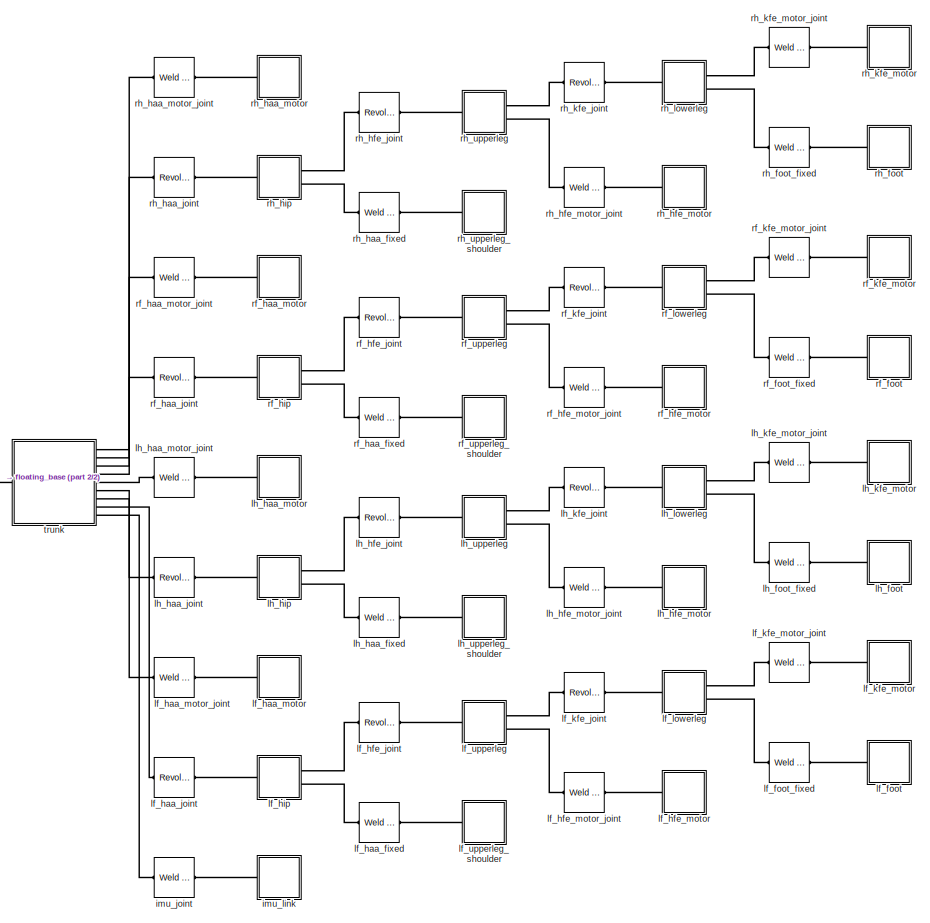
[diagram: root canvas - part 1/2, right side, full height]
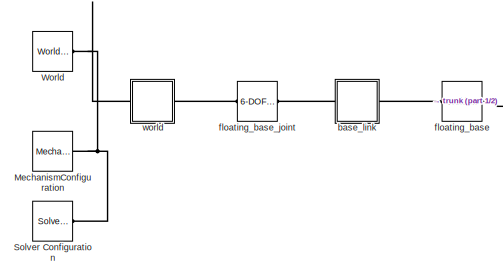
[diagram: root canvas - part 2/2, middle left region]
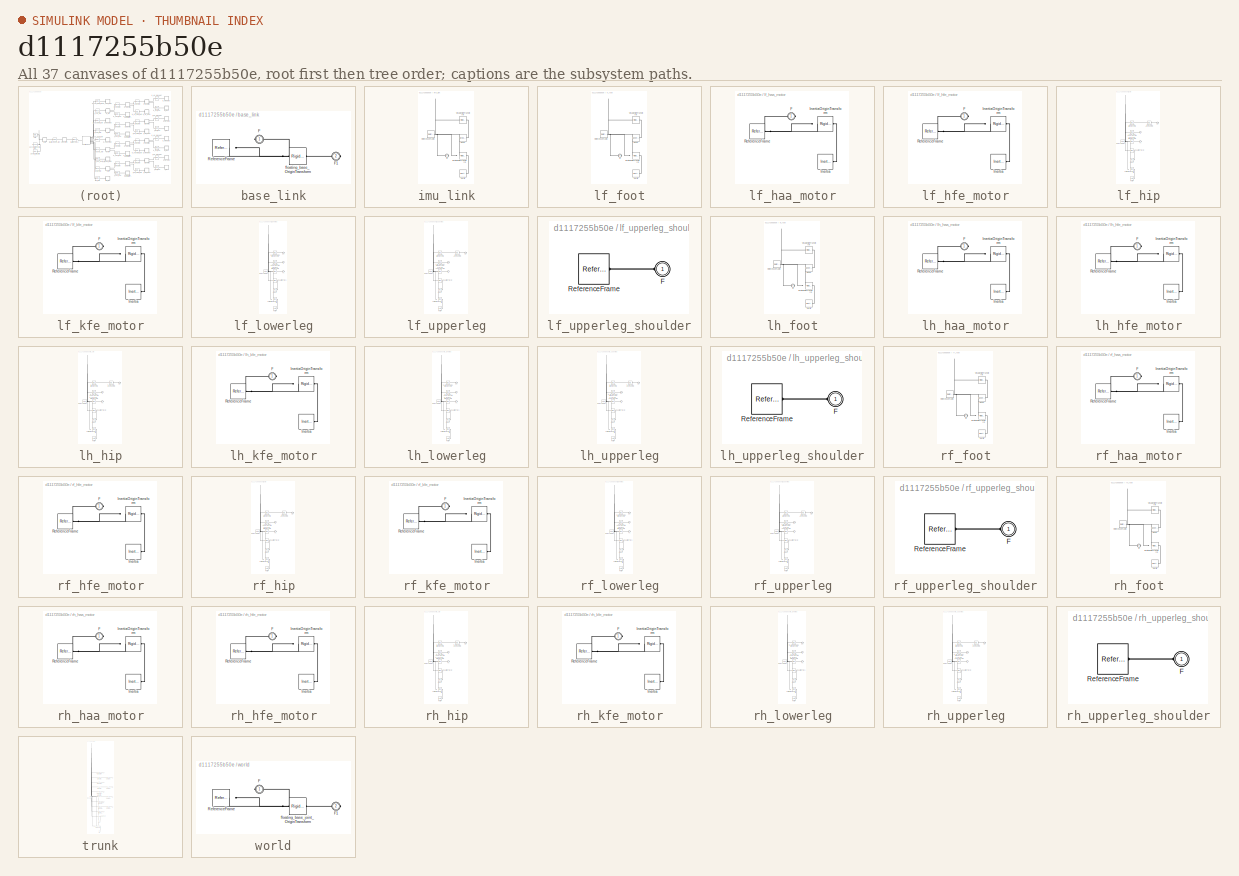
[diagram: thumbnail index - all 37 canvases of the model, root first then tree order]
MODEL slx_d1117255b50e
KIND model
CONFIG AbsTol = auto
CONFIG EnableMultiTasking = off
CONFIG FixedStep = auto
CONFIG MaxStep = auto
CONFIG MinStep = auto
CONFIG RelTol = 1e-3
CONFIG SampleTimeConstraint = Unconstrained
CONFIG SolverName = VariableStepAuto
CONFIG StartTime = 0.0
CONFIG StopTime = 10.0
BLOCK [Reference] MechanismConfiguration  REF=sm_lib/Utilities/Mechanism
Configuration
  Ports = [0, 0, 0, 0, 0, 0, 1]
  SourceBlock = sm_lib/Utilities/Mechanism\nConfiguration
  SourceProductBaseCode = MS
  SourceType = Mechanism\nConfiguration
BLOCK [Reference] Solver Configuration  REF=nesl_utility/Solver
Configuration
  Ports = [0, 0, 0, 0, 0, 0, 1]
  SourceBlock = nesl_utility/Solver\nConfiguration
  SourceProductBaseCode = PW,SS
  SourceType = Solver\nConfiguration
BLOCK [Reference] World  REF=sm_lib/Frames and
Transforms/World Frame
  Ports = [0, 0, 0, 0, 0, 0, 1]
  SourceBlock = sm_lib/Frames and\nTransforms/World Frame
  SourceProductBaseCode = MS
  SourceType = World Frame
BLOCK [SubSystem] base_link
  Ports = [0, 0, 0, 0, 0, 1, 1]
  RequestExecContextInheritance = off
BLOCK [PMIOPort] base_link/F
  Side = Left
BLOCK [PMIOPort] base_link/F1
  Port = 2
  Side = Right
BLOCK [Reference] base_link/ReferenceFrame  REF=sm_lib/Frames and
Transforms/Reference
Frame
  Ports = [0, 0, 0, 0, 0, 0, 1]
  SourceBlock = sm_lib/Frames and\nTransforms/Reference\nFrame
  SourceProductBaseCode = MS
  SourceType = Reference\nFrame
BLOCK [Reference] base_link/floating_base_OriginTransform  REF=sm_lib/Frames and
Transforms/Rigid
Transform
  Ports = [0, 0, 0, 0, 0, 1, 1]
  SourceBlock = sm_lib/Frames and\nTransforms/Rigid\nTransform
  SourceProductBaseCode = MS
  SourceType = Rigid\nTransform
BLOCK [Reference] floating_base  REF=sm_lib/Joints/Weld Joint
  Ports = [0, 0, 0, 0, 0, 1, 1]
  SourceBlock = sm_lib/Joints/Weld Joint
  SourceProductBaseCode = MS
  SourceType = Weld Joint
BLOCK [Reference] floating_base_joint  REF=sm_lib/Joints/6-DOF Joint
  Ports = [0, 0, 0, 0, 0, 1, 1]
  SourceBlock = sm_lib/Joints/6-DOF Joint
  SourceProductBaseCode = MS
  SourceType = 6-DOF Joint
BLOCK [Reference] imu_joint  REF=sm_lib/Joints/Weld Joint
  Ports = [0, 0, 0, 0, 0, 1, 1]
  SourceBlock = sm_lib/Joints/Weld Joint
  SourceProductBaseCode = MS
  SourceType = Weld Joint
BLOCK [SubSystem] imu_link
  Ports = [0, 0, 0, 0, 0, 1]
  RequestExecContextInheritance = off
BLOCK [PMIOPort] imu_link/F
  Side = Left
BLOCK [Reference] imu_link/Inertia  REF=sm_lib/Body Elements/Inertia
  Ports = [0, 0, 0, 0, 0, 0, 1]
  SourceBlock = sm_lib/Body Elements/Inertia
  SourceProductBaseCode = MS
  SourceType = Inertia
BLOCK [Reference] imu_link/InertiaOriginTransform  REF=sm_lib/Frames and
Transforms/Rigid
Transform
  Ports = [0, 0, 0, 0, 0, 1, 1]
  SourceBlock = sm_lib/Frames and\nTransforms/Rigid\nTransform
  SourceProductBaseCode = MS
  SourceType = Rigid\nTransform
BLOCK [Reference] imu_link/ReferenceFrame  REF=sm_lib/Frames and
Transforms/Reference
Frame
  Ports = [0, 0, 0, 0, 0, 0, 1]
  SourceBlock = sm_lib/Frames and\nTransforms/Reference\nFrame
  SourceProductBaseCode = MS
  SourceType = Reference\nFrame
BLOCK [Reference] imu_link/Visual  REF=sm_lib/Body Elements/Brick Solid
  Ports = [0, 0, 0, 0, 0, 0, 1]
  SourceBlock = sm_lib/Body Elements/Brick Solid
  SourceProductBaseCode = MS
  SourceType = Brick Solid
BLOCK [Reference] imu_link/VisualOriginTransform  REF=sm_lib/Frames and
Transforms/Rigid
Transform
  Ports = [0, 0, 0, 0, 0, 1, 1]
  SourceBlock = sm_lib/Frames and\nTransforms/Rigid\nTransform
  SourceProductBaseCode = MS
  SourceType = Rigid\nTransform
BLOCK [SubSystem] lf_foot
  Ports = [0, 0, 0, 0, 0, 1]
  RequestExecContextInheritance = off
BLOCK [PMIOPort] lf_foot/F
  Side = Left
BLOCK [Reference] lf_foot/Inertia  REF=sm_lib/Body Elements/Inertia
  Ports = [0, 0, 0, 0, 0, 0, 1]
  SourceBlock = sm_lib/Body Elements/Inertia
  SourceProductBaseCode = MS
  SourceType = Inertia
BLOCK [Reference] lf_foot/InertiaOriginTransform  REF=sm_lib/Frames and
Transforms/Rigid
Transform
  Ports = [0, 0, 0, 0, 0, 1, 1]
  SourceBlock = sm_lib/Frames and\nTransforms/Rigid\nTransform
  SourceProductBaseCode = MS
  SourceType = Rigid\nTransform
BLOCK [Reference] lf_foot/ReferenceFrame  REF=sm_lib/Frames and
Transforms/Reference
Frame
  Ports = [0, 0, 0, 0, 0, 0, 1]
  SourceBlock = sm_lib/Frames and\nTransforms/Reference\nFrame
  SourceProductBaseCode = MS
  SourceType = Reference\nFrame
BLOCK [Reference] lf_foot/Visual  REF=sm_lib/Body Elements/Spherical Solid
  Ports = [0, 0, 0, 0, 0, 0, 1]
  SourceBlock = sm_lib/Body Elements/Spherical Solid
  SourceProductBaseCode = MS
  SourceType = Spherical Solid
BLOCK [Reference] lf_foot/VisualOriginTransform  REF=sm_lib/Frames and
Transforms/Rigid
Transform
  Ports = [0, 0, 0, 0, 0, 1, 1]
  SourceBlock = sm_lib/Frames and\nTransforms/Rigid\nTransform
  SourceProductBaseCode = MS
  SourceType = Rigid\nTransform
BLOCK [Reference] lf_foot_fixed  REF=sm_lib/Joints/Weld Joint
  Ports = [0, 0, 0, 0, 0, 1, 1]
  SourceBlock = sm_lib/Joints/Weld Joint
  SourceProductBaseCode = MS
  SourceType = Weld Joint
BLOCK [Reference] lf_haa_fixed  REF=sm_lib/Joints/Weld Joint
  Ports = [0, 0, 0, 0, 0, 1, 1]
  SourceBlock = sm_lib/Joints/Weld Joint
  SourceProductBaseCode = MS
  SourceType = Weld Joint
BLOCK [Reference] lf_haa_joint  REF=sm_lib/Joints/Revolute Joint
  Ports = [0, 0, 0, 0, 0, 1, 1]
  SourceBlock = sm_lib/Joints/Revolute Joint
  SourceProductBaseCode = MS
  SourceType = Revolute Joint
BLOCK [SubSystem] lf_haa_motor
  Ports = [0, 0, 0, 0, 0, 1]
  RequestExecContextInheritance = off
BLOCK [PMIOPort] lf_haa_motor/F
  Side = Left
BLOCK [Reference] lf_haa_motor/Inertia  REF=sm_lib/Body Elements/Inertia
  Ports = [0, 0, 0, 0, 0, 0, 1]
  SourceBlock = sm_lib/Body Elements/Inertia
  SourceProductBaseCode = MS
  SourceType = Inertia
BLOCK [Reference] lf_haa_motor/InertiaOriginTransform  REF=sm_lib/Frames and
Transforms/Rigid
Transform
  Ports = [0, 0, 0, 0, 0, 1, 1]
  SourceBlock = sm_lib/Frames and\nTransforms/Rigid\nTransform
  SourceProductBaseCode = MS
  SourceType = Rigid\nTransform
BLOCK [Reference] lf_haa_motor/ReferenceFrame  REF=sm_lib/Frames and
Transforms/Reference
Frame
  Ports = [0, 0, 0, 0, 0, 0, 1]
  SourceBlock = sm_lib/Frames and\nTransforms/Reference\nFrame
  SourceProductBaseCode = MS
  SourceType = Reference\nFrame
BLOCK [Reference] lf_haa_motor_joint  REF=sm_lib/Joints/Weld Joint
  Ports = [0, 0, 0, 0, 0, 1, 1]
  SourceBlock = sm_lib/Joints/Weld Joint
  SourceProductBaseCode = MS
  SourceType = Weld Joint
BLOCK [Reference] lf_hfe_joint  REF=sm_lib/Joints/Revolute Joint
  Ports = [0, 0, 0, 0, 0, 1, 1]
  SourceBlock = sm_lib/Joints/Revolute Joint
  SourceProductBaseCode = MS
  SourceType = Revolute Joint
BLOCK [SubSystem] lf_hfe_motor
  Ports = [0, 0, 0, 0, 0, 1]
  RequestExecContextInheritance = off
BLOCK [PMIOPort] lf_hfe_motor/F
  Side = Left
BLOCK [Reference] lf_hfe_motor/Inertia  REF=sm_lib/Body Elements/Inertia
  Ports = [0, 0, 0, 0, 0, 0, 1]
  SourceBlock = sm_lib/Body Elements/Inertia
  SourceProductBaseCode = MS
  SourceType = Inertia
BLOCK [Reference] lf_hfe_motor/InertiaOriginTransform  REF=sm_lib/Frames and
Transforms/Rigid
Transform
  Ports = [0, 0, 0, 0, 0, 1, 1]
  SourceBlock = sm_lib/Frames and\nTransforms/Rigid\nTransform
  SourceProductBaseCode = MS
  SourceType = Rigid\nTransform
BLOCK [Reference] lf_hfe_motor/ReferenceFrame  REF=sm_lib/Frames and
Transforms/Reference
Frame
  Ports = [0, 0, 0, 0, 0, 0, 1]
  SourceBlock = sm_lib/Frames and\nTransforms/Reference\nFrame
  SourceProductBaseCode = MS
  SourceType = Reference\nFrame
BLOCK [Reference] lf_hfe_motor_joint  REF=sm_lib/Joints/Weld Joint
  Ports = [0, 0, 0, 0, 0, 1, 1]
  SourceBlock = sm_lib/Joints/Weld Joint
  SourceProductBaseCode = MS
  SourceType = Weld Joint
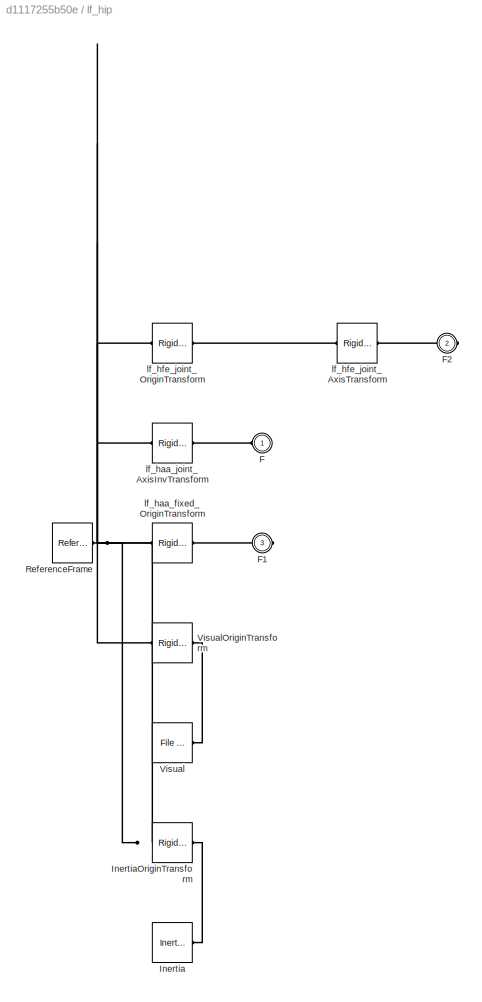
BLOCK [SubSystem] lf_hip
  Ports = [0, 0, 0, 0, 0, 1, 2]
  RequestExecContextInheritance = off
BLOCK [PMIOPort] lf_hip/F
  Side = Left
BLOCK [PMIOPort] lf_hip/F1
  Port = 3
  Side = Right
BLOCK [PMIOPort] lf_hip/F2
  Port = 2
  Side = Right
BLOCK [Reference] lf_hip/Inertia  REF=sm_lib/Body Elements/Inertia
  Ports = [0, 0, 0, 0, 0, 0, 1]
  SourceBlock = sm_lib/Body Elements/Inertia
  SourceProductBaseCode = MS
  SourceType = Inertia
BLOCK [Reference] lf_hip/InertiaOriginTransform  REF=sm_lib/Frames and
Transforms/Rigid
Transform
  Ports = [0, 0, 0, 0, 0, 1, 1]
  SourceBlock = sm_lib/Frames and\nTransforms/Rigid\nTransform
  SourceProductBaseCode = MS
  SourceType = Rigid\nTransform
BLOCK [Reference] lf_hip/ReferenceFrame  REF=sm_lib/Frames and
Transforms/Reference
Frame
  Ports = [0, 0, 0, 0, 0, 0, 1]
  SourceBlock = sm_lib/Frames and\nTransforms/Reference\nFrame
  SourceProductBaseCode = MS
  SourceType = Reference\nFrame
BLOCK [Reference] lf_hip/Visual  REF=sm_lib/Body Elements/File Solid
  Ports = [0, 0, 0, 0, 0, 0, 1]
  SourceBlock = sm_lib/Body Elements/File Solid
  SourceProductBaseCode = MS
  SourceType = File Solid
BLOCK [Reference] lf_hip/VisualOriginTransform  REF=sm_lib/Frames and
Transforms/Rigid
Transform
  Ports = [0, 0, 0, 0, 0, 1, 1]
  SourceBlock = sm_lib/Frames and\nTransforms/Rigid\nTransform
  SourceProductBaseCode = MS
  SourceType = Rigid\nTransform
BLOCK [Reference] lf_hip/lf_haa_fixed_OriginTransform  REF=sm_lib/Frames and
Transforms/Rigid
Transform
  Ports = [0, 0, 0, 0, 0, 1, 1]
  SourceBlock = sm_lib/Frames and\nTransforms/Rigid\nTransform
  SourceProductBaseCode = MS
  SourceType = Rigid\nTransform
BLOCK [Reference] lf_hip/lf_haa_joint_AxisInvTransform  REF=sm_lib/Frames and
Transforms/Rigid
Transform
  Ports = [0, 0, 0, 0, 0, 1, 1]
  SourceBlock = sm_lib/Frames and\nTransforms/Rigid\nTransform
  SourceProductBaseCode = MS
  SourceType = Rigid\nTransform
BLOCK [Reference] lf_hip/lf_hfe_joint_AxisTransform  REF=sm_lib/Frames and
Transforms/Rigid
Transform
  Ports = [0, 0, 0, 0, 0, 1, 1]
  SourceBlock = sm_lib/Frames and\nTransforms/Rigid\nTransform
  SourceProductBaseCode = MS
  SourceType = Rigid\nTransform
BLOCK [Reference] lf_hip/lf_hfe_joint_OriginTransform  REF=sm_lib/Frames and
Transforms/Rigid
Transform
  Ports = [0, 0, 0, 0, 0, 1, 1]
  SourceBlock = sm_lib/Frames and\nTransforms/Rigid\nTransform
  SourceProductBaseCode = MS
  SourceType = Rigid\nTransform
BLOCK [Reference] lf_kfe_joint  REF=sm_lib/Joints/Revolute Joint
  Ports = [0, 0, 0, 0, 0, 1, 1]
  SourceBlock = sm_lib/Joints/Revolute Joint
  SourceProductBaseCode = MS
  SourceType = Revolute Joint
BLOCK [SubSystem] lf_kfe_motor
  Ports = [0, 0, 0, 0, 0, 1]
  RequestExecContextInheritance = off
BLOCK [PMIOPort] lf_kfe_motor/F
  Side = Left
BLOCK [Reference] lf_kfe_motor/Inertia  REF=sm_lib/Body Elements/Inertia
  Ports = [0, 0, 0, 0, 0, 0, 1]
  SourceBlock = sm_lib/Body Elements/Inertia
  SourceProductBaseCode = MS
  SourceType = Inertia
BLOCK [Reference] lf_kfe_motor/InertiaOriginTransform  REF=sm_lib/Frames and
Transforms/Rigid
Transform
  Ports = [0, 0, 0, 0, 0, 1, 1]
  SourceBlock = sm_lib/Frames and\nTransforms/Rigid\nTransform
  SourceProductBaseCode = MS
  SourceType = Rigid\nTransform
BLOCK [Reference] lf_kfe_motor/ReferenceFrame  REF=sm_lib/Frames and
Transforms/Reference
Frame
  Ports = [0, 0, 0, 0, 0, 0, 1]
  SourceBlock = sm_lib/Frames and\nTransforms/Reference\nFrame
  SourceProductBaseCode = MS
  SourceType = Reference\nFrame
BLOCK [Reference] lf_kfe_motor_joint  REF=sm_lib/Joints/Weld Joint
  Ports = [0, 0, 0, 0, 0, 1, 1]
  SourceBlock = sm_lib/Joints/Weld Joint
  SourceProductBaseCode = MS
  SourceType = Weld Joint
BLOCK [SubSystem] lf_lowerleg
  Ports = [0, 0, 0, 0, 0, 1, 2]
  RequestExecContextInheritance = off
BLOCK [PMIOPort] lf_lowerleg/F
  Side = Left
BLOCK [PMIOPort] lf_lowerleg/F1
  Port = 3
  Side = Right
BLOCK [PMIOPort] lf_lowerleg/F2
  Port = 2
  Side = Right
BLOCK [Reference] lf_lowerleg/Inertia  REF=sm_lib/Body Elements/Inertia
  Ports = [0, 0, 0, 0, 0, 0, 1]
  SourceBlock = sm_lib/Body Elements/Inertia
  SourceProductBaseCode = MS
  SourceType = Inertia
BLOCK [Reference] lf_lowerleg/InertiaOriginTransform  REF=sm_lib/Frames and
Transforms/Rigid
Transform
  Ports = [0, 0, 0, 0, 0, 1, 1]
  SourceBlock = sm_lib/Frames and\nTransforms/Rigid\nTransform
  SourceProductBaseCode = MS
  SourceType = Rigid\nTransform
BLOCK [Reference] lf_lowerleg/ReferenceFrame  REF=sm_lib/Frames and
Transforms/Reference
Frame
  Ports = [0, 0, 0, 0, 0, 0, 1]
  SourceBlock = sm_lib/Frames and\nTransforms/Reference\nFrame
  SourceProductBaseCode = MS
  SourceType = Reference\nFrame
BLOCK [Reference] lf_lowerleg/Visual  REF=sm_lib/Body Elements/File Solid
  Ports = [0, 0, 0, 0, 0, 0, 1]
  SourceBlock = sm_lib/Body Elements/File Solid
  SourceProductBaseCode = MS
  SourceType = File Solid
BLOCK [Reference] lf_lowerleg/VisualOriginTransform  REF=sm_lib/Frames and
Transforms/Rigid
Transform
  Ports = [0, 0, 0, 0, 0, 1, 1]
  SourceBlock = sm_lib/Frames and\nTransforms/Rigid\nTransform
  SourceProductBaseCode = MS
  SourceType = Rigid\nTransform
BLOCK [Reference] lf_lowerleg/lf_foot_fixed_OriginTransform  REF=sm_lib/Frames and
Transforms/Rigid
Transform
  Ports = [0, 0, 0, 0, 0, 1, 1]
  SourceBlock = sm_lib/Frames and\nTransforms/Rigid\nTransform
  SourceProductBaseCode = MS
  SourceType = Rigid\nTransform
BLOCK [Reference] lf_lowerleg/lf_kfe_joint_AxisInvTransform  REF=sm_lib/Frames and
Transforms/Rigid
Transform
  Ports = [0, 0, 0, 0, 0, 1, 1]
  SourceBlock = sm_lib/Frames and\nTransforms/Rigid\nTransform
  SourceProductBaseCode = MS
  SourceType = Rigid\nTransform
BLOCK [Reference] lf_lowerleg/lf_kfe_motor_joint_OriginTransform  REF=sm_lib/Frames and
Transforms/Rigid
Transform
  Ports = [0, 0, 0, 0, 0, 1, 1]
  SourceBlock = sm_lib/Frames and\nTransforms/Rigid\nTransform
  SourceProductBaseCode = MS
  SourceType = Rigid\nTransform
BLOCK [SubSystem] lf_upperleg
  Ports = [0, 0, 0, 0, 0, 1, 2]
  RequestExecContextInheritance = off
BLOCK [PMIOPort] lf_upperleg/F
  Side = Left
BLOCK [PMIOPort] lf_upperleg/F1
  Port = 3
  Side = Right
BLOCK [PMIOPort] lf_upperleg/F2
  Port = 2
  Side = Right
BLOCK [Reference] lf_upperleg/Inertia  REF=sm_lib/Body Elements/Inertia
  Ports = [0, 0, 0, 0, 0, 0, 1]
  SourceBlock = sm_lib/Body Elements/Inertia
  SourceProductBaseCode = MS
  SourceType = Inertia
BLOCK [Reference] lf_upperleg/InertiaOriginTransform  REF=sm_lib/Frames and
Transforms/Rigid
Transform
  Ports = [0, 0, 0, 0, 0, 1, 1]
  SourceBlock = sm_lib/Frames and\nTransforms/Rigid\nTransform
  SourceProductBaseCode = MS
  SourceType = Rigid\nTransform
BLOCK [Reference] lf_upperleg/ReferenceFrame  REF=sm_lib/Frames and
Transforms/Reference
Frame
  Ports = [0, 0, 0, 0, 0, 0, 1]
  SourceBlock = sm_lib/Frames and\nTransforms/Reference\nFrame
  SourceProductBaseCode = MS
  SourceType = Reference\nFrame
BLOCK [Reference] lf_upperleg/Visual  REF=sm_lib/Body Elements/File Solid
  Ports = [0, 0, 0, 0, 0, 0, 1]
  SourceBlock = sm_lib/Body Elements/File Solid
  SourceProductBaseCode = MS
  SourceType = File Solid
BLOCK [Reference] lf_upperleg/VisualOriginTransform  REF=sm_lib/Frames and
Transforms/Rigid
Transform
  Ports = [0, 0, 0, 0, 0, 1, 1]
  SourceBlock = sm_lib/Frames and\nTransforms/Rigid\nTransform
  SourceProductBaseCode = MS
  SourceType = Rigid\nTransform
BLOCK [Reference] lf_upperleg/lf_hfe_joint_AxisInvTransform  REF=sm_lib/Frames and
Transforms/Rigid
Transform
  Ports = [0, 0, 0, 0, 0, 1, 1]
  SourceBlock = sm_lib/Frames and\nTransforms/Rigid\nTransform
  SourceProductBaseCode = MS
  SourceType = Rigid\nTransform
BLOCK [Reference] lf_upperleg/lf_hfe_motor_joint_OriginTransform  REF=sm_lib/Frames and
Transforms/Rigid
Transform
  Ports = [0, 0, 0, 0, 0, 1, 1]
  SourceBlock = sm_lib/Frames and\nTransforms/Rigid\nTransform
  SourceProductBaseCode = MS
  SourceType = Rigid\nTransform
BLOCK [Reference] lf_upperleg/lf_kfe_joint_AxisTransform  REF=sm_lib/Frames and
Transforms/Rigid
Transform
  Ports = [0, 0, 0, 0, 0, 1, 1]
  SourceBlock = sm_lib/Frames and\nTransforms/Rigid\nTransform
  SourceProductBaseCode = MS
  SourceType = Rigid\nTransform
BLOCK [Reference] lf_upperleg/lf_kfe_joint_OriginTransform  REF=sm_lib/Frames and
Transforms/Rigid
Transform
  Ports = [0, 0, 0, 0, 0, 1, 1]
  SourceBlock = sm_lib/Frames and\nTransforms/Rigid\nTransform
  SourceProductBaseCode = MS
  SourceType = Rigid\nTransform
BLOCK [SubSystem] lf_upperleg_shoulder
  Ports = [0, 0, 0, 0, 0, 1]
  RequestExecContextInheritance = off
BLOCK [PMIOPort] lf_upperleg_shoulder/F
  Side = Left
BLOCK [Reference] lf_upperleg_shoulder/ReferenceFrame  REF=sm_lib/Frames and
Transforms/Reference
Frame
  Ports = [0, 0, 0, 0, 0, 0, 1]
  SourceBlock = sm_lib/Frames and\nTransforms/Reference\nFrame
  SourceProductBaseCode = MS
  SourceType = Reference\nFrame
BLOCK [SubSystem] lh_foot
  Ports = [0, 0, 0, 0, 0, 1]
  RequestExecContextInheritance = off
BLOCK [PMIOPort] lh_foot/F
  Side = Left
BLOCK [Reference] lh_foot/Inertia  REF=sm_lib/Body Elements/Inertia
  Ports = [0, 0, 0, 0, 0, 0, 1]
  SourceBlock = sm_lib/Body Elements/Inertia
  SourceProductBaseCode = MS
  SourceType = Inertia
BLOCK [Reference] lh_foot/InertiaOriginTransform  REF=sm_lib/Frames and
Transforms/Rigid
Transform
  Ports = [0, 0, 0, 0, 0, 1, 1]
  SourceBlock = sm_lib/Frames and\nTransforms/Rigid\nTransform
  SourceProductBaseCode = MS
  SourceType = Rigid\nTransform
BLOCK [Reference] lh_foot/ReferenceFrame  REF=sm_lib/Frames and
Transforms/Reference
Frame
  Ports = [0, 0, 0, 0, 0, 0, 1]
  SourceBlock = sm_lib/Frames and\nTransforms/Reference\nFrame
  SourceProductBaseCode = MS
  SourceType = Reference\nFrame
BLOCK [Reference] lh_foot/Visual  REF=sm_lib/Body Elements/Spherical Solid
  Ports = [0, 0, 0, 0, 0, 0, 1]
  SourceBlock = sm_lib/Body Elements/Spherical Solid
  SourceProductBaseCode = MS
  SourceType = Spherical Solid
BLOCK [Reference] lh_foot/VisualOriginTransform  REF=sm_lib/Frames and
Transforms/Rigid
Transform
  Ports = [0, 0, 0, 0, 0, 1, 1]
  SourceBlock = sm_lib/Frames and\nTransforms/Rigid\nTransform
  SourceProductBaseCode = MS
  SourceType = Rigid\nTransform
BLOCK [Reference] lh_foot_fixed  REF=sm_lib/Joints/Weld Joint
  Ports = [0, 0, 0, 0, 0, 1, 1]
  SourceBlock = sm_lib/Joints/Weld Joint
  SourceProductBaseCode = MS
  SourceType = Weld Joint
BLOCK [Reference] lh_haa_fixed  REF=sm_lib/Joints/Weld Joint
  Ports = [0, 0, 0, 0, 0, 1, 1]
  SourceBlock = sm_lib/Joints/Weld Joint
  SourceProductBaseCode = MS
  SourceType = Weld Joint
BLOCK [Reference] lh_haa_joint  REF=sm_lib/Joints/Revolute Joint
  Ports = [0, 0, 0, 0, 0, 1, 1]
  SourceBlock = sm_lib/Joints/Revolute Joint
  SourceProductBaseCode = MS
  SourceType = Revolute Joint
BLOCK [SubSystem] lh_haa_motor
  Ports = [0, 0, 0, 0, 0, 1]
  RequestExecContextInheritance = off
BLOCK [PMIOPort] lh_haa_motor/F
  Side = Left
BLOCK [Reference] lh_haa_motor/Inertia  REF=sm_lib/Body Elements/Inertia
  Ports = [0, 0, 0, 0, 0, 0, 1]
  SourceBlock = sm_lib/Body Elements/Inertia
  SourceProductBaseCode = MS
  SourceType = Inertia
BLOCK [Reference] lh_haa_motor/InertiaOriginTransform  REF=sm_lib/Frames and
Transforms/Rigid
Transform
  Ports = [0, 0, 0, 0, 0, 1, 1]
  SourceBlock = sm_lib/Frames and\nTransforms/Rigid\nTransform
  SourceProductBaseCode = MS
  SourceType = Rigid\nTransform
BLOCK [Reference] lh_haa_motor/ReferenceFrame  REF=sm_lib/Frames and
Transforms/Reference
Frame
  Ports = [0, 0, 0, 0, 0, 0, 1]
  SourceBlock = sm_lib/Frames and\nTransforms/Reference\nFrame
  SourceProductBaseCode = MS
  SourceType = Reference\nFrame
BLOCK [Reference] lh_haa_motor_joint  REF=sm_lib/Joints/Weld Joint
  Ports = [0, 0, 0, 0, 0, 1, 1]
  SourceBlock = sm_lib/Joints/Weld Joint
  SourceProductBaseCode = MS
  SourceType = Weld Joint
BLOCK [Reference] lh_hfe_joint  REF=sm_lib/Joints/Revolute Joint
  Ports = [0, 0, 0, 0, 0, 1, 1]
  SourceBlock = sm_lib/Joints/Revolute Joint
  SourceProductBaseCode = MS
  SourceType = Revolute Joint
BLOCK [SubSystem] lh_hfe_motor
  Ports = [0, 0, 0, 0, 0, 1]
  RequestExecContextInheritance = off
BLOCK [PMIOPort] lh_hfe_motor/F
  Side = Left
BLOCK [Reference] lh_hfe_motor/Inertia  REF=sm_lib/Body Elements/Inertia
  Ports = [0, 0, 0, 0, 0, 0, 1]
  SourceBlock = sm_lib/Body Elements/Inertia
  SourceProductBaseCode = MS
  SourceType = Inertia
BLOCK [Reference] lh_hfe_motor/InertiaOriginTransform  REF=sm_lib/Frames and
Transforms/Rigid
Transform
  Ports = [0, 0, 0, 0, 0, 1, 1]
  SourceBlock = sm_lib/Frames and\nTransforms/Rigid\nTransform
  SourceProductBaseCode = MS
  SourceType = Rigid\nTransform
BLOCK [Reference] lh_hfe_motor/ReferenceFrame  REF=sm_lib/Frames and
Transforms/Reference
Frame
  Ports = [0, 0, 0, 0, 0, 0, 1]
  SourceBlock = sm_lib/Frames and\nTransforms/Reference\nFrame
  SourceProductBaseCode = MS
  SourceType = Reference\nFrame
BLOCK [Reference] lh_hfe_motor_joint  REF=sm_lib/Joints/Weld Joint
  Ports = [0, 0, 0, 0, 0, 1, 1]
  SourceBlock = sm_lib/Joints/Weld Joint
  SourceProductBaseCode = MS
  SourceType = Weld Joint
BLOCK [SubSystem] lh_hip
  Ports = [0, 0, 0, 0, 0, 1, 2]
  RequestExecContextInheritance = off
BLOCK [PMIOPort] lh_hip/F
  Side = Left
BLOCK [PMIOPort] lh_hip/F1
  Port = 3
  Side = Right
BLOCK [PMIOPort] lh_hip/F2
  Port = 2
  Side = Right
BLOCK [Reference] lh_hip/Inertia  REF=sm_lib/Body Elements/Inertia
  Ports = [0, 0, 0, 0, 0, 0, 1]
  SourceBlock = sm_lib/Body Elements/Inertia
  SourceProductBaseCode = MS
  SourceType = Inertia
BLOCK [Reference] lh_hip/InertiaOriginTransform  REF=sm_lib/Frames and
Transforms/Rigid
Transform
  Ports = [0, 0, 0, 0, 0, 1, 1]
  SourceBlock = sm_lib/Frames and\nTransforms/Rigid\nTransform
  SourceProductBaseCode = MS
  SourceType = Rigid\nTransform
BLOCK [Reference] lh_hip/ReferenceFrame  REF=sm_lib/Frames and
Transforms/Reference
Frame
  Ports = [0, 0, 0, 0, 0, 0, 1]
  SourceBlock = sm_lib/Frames and\nTransforms/Reference\nFrame
  SourceProductBaseCode = MS
  SourceType = Reference\nFrame
BLOCK [Reference] lh_hip/Visual  REF=sm_lib/Body Elements/File Solid
  Ports = [0, 0, 0, 0, 0, 0, 1]
  SourceBlock = sm_lib/Body Elements/File Solid
  SourceProductBaseCode = MS
  SourceType = File Solid
BLOCK [Reference] lh_hip/VisualOriginTransform  REF=sm_lib/Frames and
Transforms/Rigid
Transform
  Ports = [0, 0, 0, 0, 0, 1, 1]
  SourceBlock = sm_lib/Frames and\nTransforms/Rigid\nTransform
  SourceProductBaseCode = MS
  SourceType = Rigid\nTransform
BLOCK [Reference] lh_hip/lh_haa_fixed_OriginTransform  REF=sm_lib/Frames and
Transforms/Rigid
Transform
  Ports = [0, 0, 0, 0, 0, 1, 1]
  SourceBlock = sm_lib/Frames and\nTransforms/Rigid\nTransform
  SourceProductBaseCode = MS
  SourceType = Rigid\nTransform
BLOCK [Reference] lh_hip/lh_haa_joint_AxisInvTransform  REF=sm_lib/Frames and
Transforms/Rigid
Transform
  Ports = [0, 0, 0, 0, 0, 1, 1]
  SourceBlock = sm_lib/Frames and\nTransforms/Rigid\nTransform
  SourceProductBaseCode = MS
  SourceType = Rigid\nTransform
BLOCK [Reference] lh_hip/lh_hfe_joint_AxisTransform  REF=sm_lib/Frames and
Transforms/Rigid
Transform
  Ports = [0, 0, 0, 0, 0, 1, 1]
  SourceBlock = sm_lib/Frames and\nTransforms/Rigid\nTransform
  SourceProductBaseCode = MS
  SourceType = Rigid\nTransform
BLOCK [Reference] lh_hip/lh_hfe_joint_OriginTransform  REF=sm_lib/Frames and
Transforms/Rigid
Transform
  Ports = [0, 0, 0, 0, 0, 1, 1]
  SourceBlock = sm_lib/Frames and\nTransforms/Rigid\nTransform
  SourceProductBaseCode = MS
  SourceType = Rigid\nTransform
BLOCK [Reference] lh_kfe_joint  REF=sm_lib/Joints/Revolute Joint
  Ports = [0, 0, 0, 0, 0, 1, 1]
  SourceBlock = sm_lib/Joints/Revolute Joint
  SourceProductBaseCode = MS
  SourceType = Revolute Joint
BLOCK [SubSystem] lh_kfe_motor
  Ports = [0, 0, 0, 0, 0, 1]
  RequestExecContextInheritance = off
BLOCK [PMIOPort] lh_kfe_motor/F
  Side = Left
BLOCK [Reference] lh_kfe_motor/Inertia  REF=sm_lib/Body Elements/Inertia
  Ports = [0, 0, 0, 0, 0, 0, 1]
  SourceBlock = sm_lib/Body Elements/Inertia
  SourceProductBaseCode = MS
  SourceType = Inertia
BLOCK [Reference] lh_kfe_motor/InertiaOriginTransform  REF=sm_lib/Frames and
Transforms/Rigid
Transform
  Ports = [0, 0, 0, 0, 0, 1, 1]
  SourceBlock = sm_lib/Frames and\nTransforms/Rigid\nTransform
  SourceProductBaseCode = MS
  SourceType = Rigid\nTransform
BLOCK [Reference] lh_kfe_motor/ReferenceFrame  REF=sm_lib/Frames and
Transforms/Reference
Frame
  Ports = [0, 0, 0, 0, 0, 0, 1]
  SourceBlock = sm_lib/Frames and\nTransforms/Reference\nFrame
  SourceProductBaseCode = MS
  SourceType = Reference\nFrame
BLOCK [Reference] lh_kfe_motor_joint  REF=sm_lib/Joints/Weld Joint
  Ports = [0, 0, 0, 0, 0, 1, 1]
  SourceBlock = sm_lib/Joints/Weld Joint
  SourceProductBaseCode = MS
  SourceType = Weld Joint
BLOCK [SubSystem] lh_lowerleg
  Ports = [0, 0, 0, 0, 0, 1, 2]
  RequestExecContextInheritance = off
BLOCK [PMIOPort] lh_lowerleg/F
  Side = Left
BLOCK [PMIOPort] lh_lowerleg/F1
  Port = 3
  Side = Right
BLOCK [PMIOPort] lh_lowerleg/F2
  Port = 2
  Side = Right
BLOCK [Reference] lh_lowerleg/Inertia  REF=sm_lib/Body Elements/Inertia
  Ports = [0, 0, 0, 0, 0, 0, 1]
  SourceBlock = sm_lib/Body Elements/Inertia
  SourceProductBaseCode = MS
  SourceType = Inertia
BLOCK [Reference] lh_lowerleg/InertiaOriginTransform  REF=sm_lib/Frames and
Transforms/Rigid
Transform
  Ports = [0, 0, 0, 0, 0, 1, 1]
  SourceBlock = sm_lib/Frames and\nTransforms/Rigid\nTransform
  SourceProductBaseCode = MS
  SourceType = Rigid\nTransform
BLOCK [Reference] lh_lowerleg/ReferenceFrame  REF=sm_lib/Frames and
Transforms/Reference
Frame
  Ports = [0, 0, 0, 0, 0, 0, 1]
  SourceBlock = sm_lib/Frames and\nTransforms/Reference\nFrame
  SourceProductBaseCode = MS
  SourceType = Reference\nFrame
BLOCK [Reference] lh_lowerleg/Visual  REF=sm_lib/Body Elements/File Solid
  Ports = [0, 0, 0, 0, 0, 0, 1]
  SourceBlock = sm_lib/Body Elements/File Solid
  SourceProductBaseCode = MS
  SourceType = File Solid
BLOCK [Reference] lh_lowerleg/VisualOriginTransform  REF=sm_lib/Frames and
Transforms/Rigid
Transform
  Ports = [0, 0, 0, 0, 0, 1, 1]
  SourceBlock = sm_lib/Frames and\nTransforms/Rigid\nTransform
  SourceProductBaseCode = MS
  SourceType = Rigid\nTransform
BLOCK [Reference] lh_lowerleg/lh_foot_fixed_OriginTransform  REF=sm_lib/Frames and
Transforms/Rigid
Transform
  Ports = [0, 0, 0, 0, 0, 1, 1]
  SourceBlock = sm_lib/Frames and\nTransforms/Rigid\nTransform
  SourceProductBaseCode = MS
  SourceType = Rigid\nTransform
BLOCK [Reference] lh_lowerleg/lh_kfe_joint_AxisInvTransform  REF=sm_lib/Frames and
Transforms/Rigid
Transform
  Ports = [0, 0, 0, 0, 0, 1, 1]
  SourceBlock = sm_lib/Frames and\nTransforms/Rigid\nTransform
  SourceProductBaseCode = MS
  SourceType = Rigid\nTransform
BLOCK [Reference] lh_lowerleg/lh_kfe_motor_joint_OriginTransform  REF=sm_lib/Frames and
Transforms/Rigid
Transform
  Ports = [0, 0, 0, 0, 0, 1, 1]
  SourceBlock = sm_lib/Frames and\nTransforms/Rigid\nTransform
  SourceProductBaseCode = MS
  SourceType = Rigid\nTransform
BLOCK [SubSystem] lh_upperleg
  Ports = [0, 0, 0, 0, 0, 1, 2]
  RequestExecContextInheritance = off
BLOCK [PMIOPort] lh_upperleg/F
  Side = Left
BLOCK [PMIOPort] lh_upperleg/F1
  Port = 3
  Side = Right
BLOCK [PMIOPort] lh_upperleg/F2
  Port = 2
  Side = Right
BLOCK [Reference] lh_upperleg/Inertia  REF=sm_lib/Body Elements/Inertia
  Ports = [0, 0, 0, 0, 0, 0, 1]
  SourceBlock = sm_lib/Body Elements/Inertia
  SourceProductBaseCode = MS
  SourceType = Inertia
BLOCK [Reference] lh_upperleg/InertiaOriginTransform  REF=sm_lib/Frames and
Transforms/Rigid
Transform
  Ports = [0, 0, 0, 0, 0, 1, 1]
  SourceBlock = sm_lib/Frames and\nTransforms/Rigid\nTransform
  SourceProductBaseCode = MS
  SourceType = Rigid\nTransform
BLOCK [Reference] lh_upperleg/ReferenceFrame  REF=sm_lib/Frames and
Transforms/Reference
Frame
  Ports = [0, 0, 0, 0, 0, 0, 1]
  SourceBlock = sm_lib/Frames and\nTransforms/Reference\nFrame
  SourceProductBaseCode = MS
  SourceType = Reference\nFrame
BLOCK [Reference] lh_upperleg/Visual  REF=sm_lib/Body Elements/File Solid
  Ports = [0, 0, 0, 0, 0, 0, 1]
  SourceBlock = sm_lib/Body Elements/File Solid
  SourceProductBaseCode = MS
  SourceType = File Solid
BLOCK [Reference] lh_upperleg/VisualOriginTransform  REF=sm_lib/Frames and
Transforms/Rigid
Transform
  Ports = [0, 0, 0, 0, 0, 1, 1]
  SourceBlock = sm_lib/Frames and\nTransforms/Rigid\nTransform
  SourceProductBaseCode = MS
  SourceType = Rigid\nTransform
BLOCK [Reference] lh_upperleg/lh_hfe_joint_AxisInvTransform  REF=sm_lib/Frames and
Transforms/Rigid
Transform
  Ports = [0, 0, 0, 0, 0, 1, 1]
  SourceBlock = sm_lib/Frames and\nTransforms/Rigid\nTransform
  SourceProductBaseCode = MS
  SourceType = Rigid\nTransform
BLOCK [Reference] lh_upperleg/lh_hfe_motor_joint_OriginTransform  REF=sm_lib/Frames and
Transforms/Rigid
Transform
  Ports = [0, 0, 0, 0, 0, 1, 1]
  SourceBlock = sm_lib/Frames and\nTransforms/Rigid\nTransform
  SourceProductBaseCode = MS
  SourceType = Rigid\nTransform
BLOCK [Reference] lh_upperleg/lh_kfe_joint_AxisTransform  REF=sm_lib/Frames and
Transforms/Rigid
Transform
  Ports = [0, 0, 0, 0, 0, 1, 1]
  SourceBlock = sm_lib/Frames and\nTransforms/Rigid\nTransform
  SourceProductBaseCode = MS
  SourceType = Rigid\nTransform
BLOCK [Reference] lh_upperleg/lh_kfe_joint_OriginTransform  REF=sm_lib/Frames and
Transforms/Rigid
Transform
  Ports = [0, 0, 0, 0, 0, 1, 1]
  SourceBlock = sm_lib/Frames and\nTransforms/Rigid\nTransform
  SourceProductBaseCode = MS
  SourceType = Rigid\nTransform
BLOCK [SubSystem] lh_upperleg_shoulder
  Ports = [0, 0, 0, 0, 0, 1]
  RequestExecContextInheritance = off
BLOCK [PMIOPort] lh_upperleg_shoulder/F
  Side = Left
BLOCK [Reference] lh_upperleg_shoulder/ReferenceFrame  REF=sm_lib/Frames and
Transforms/Reference
Frame
  Ports = [0, 0, 0, 0, 0, 0, 1]
  SourceBlock = sm_lib/Frames and\nTransforms/Reference\nFrame
  SourceProductBaseCode = MS
  SourceType = Reference\nFrame
BLOCK [SubSystem] rf_foot
  Ports = [0, 0, 0, 0, 0, 1]
  RequestExecContextInheritance = off
BLOCK [PMIOPort] rf_foot/F
  Side = Left
BLOCK [Reference] rf_foot/Inertia  REF=sm_lib/Body Elements/Inertia
  Ports = [0, 0, 0, 0, 0, 0, 1]
  SourceBlock = sm_lib/Body Elements/Inertia
  SourceProductBaseCode = MS
  SourceType = Inertia
BLOCK [Reference] rf_foot/InertiaOriginTransform  REF=sm_lib/Frames and
Transforms/Rigid
Transform
  Ports = [0, 0, 0, 0, 0, 1, 1]
  SourceBlock = sm_lib/Frames and\nTransforms/Rigid\nTransform
  SourceProductBaseCode = MS
  SourceType = Rigid\nTransform
BLOCK [Reference] rf_foot/ReferenceFrame  REF=sm_lib/Frames and
Transforms/Reference
Frame
  Ports = [0, 0, 0, 0, 0, 0, 1]
  SourceBlock = sm_lib/Frames and\nTransforms/Reference\nFrame
  SourceProductBaseCode = MS
  SourceType = Reference\nFrame
BLOCK [Reference] rf_foot/Visual  REF=sm_lib/Body Elements/Spherical Solid
  Ports = [0, 0, 0, 0, 0, 0, 1]
  SourceBlock = sm_lib/Body Elements/Spherical Solid
  SourceProductBaseCode = MS
  SourceType = Spherical Solid
BLOCK [Reference] rf_foot/VisualOriginTransform  REF=sm_lib/Frames and
Transforms/Rigid
Transform
  Ports = [0, 0, 0, 0, 0, 1, 1]
  SourceBlock = sm_lib/Frames and\nTransforms/Rigid\nTransform
  SourceProductBaseCode = MS
  SourceType = Rigid\nTransform
BLOCK [Reference] rf_foot_fixed  REF=sm_lib/Joints/Weld Joint
  Ports = [0, 0, 0, 0, 0, 1, 1]
  SourceBlock = sm_lib/Joints/Weld Joint
  SourceProductBaseCode = MS
  SourceType = Weld Joint
BLOCK [Reference] rf_haa_fixed  REF=sm_lib/Joints/Weld Joint
  Ports = [0, 0, 0, 0, 0, 1, 1]
  SourceBlock = sm_lib/Joints/Weld Joint
  SourceProductBaseCode = MS
  SourceType = Weld Joint
BLOCK [Reference] rf_haa_joint  REF=sm_lib/Joints/Revolute Joint
  Ports = [0, 0, 0, 0, 0, 1, 1]
  SourceBlock = sm_lib/Joints/Revolute Joint
  SourceProductBaseCode = MS
  SourceType = Revolute Joint
BLOCK [SubSystem] rf_haa_motor
  Ports = [0, 0, 0, 0, 0, 1]
  RequestExecContextInheritance = off
BLOCK [PMIOPort] rf_haa_motor/F
  Side = Left
BLOCK [Reference] rf_haa_motor/Inertia  REF=sm_lib/Body Elements/Inertia
  Ports = [0, 0, 0, 0, 0, 0, 1]
  SourceBlock = sm_lib/Body Elements/Inertia
  SourceProductBaseCode = MS
  SourceType = Inertia
BLOCK [Reference] rf_haa_motor/InertiaOriginTransform  REF=sm_lib/Frames and
Transforms/Rigid
Transform
  Ports = [0, 0, 0, 0, 0, 1, 1]
  SourceBlock = sm_lib/Frames and\nTransforms/Rigid\nTransform
  SourceProductBaseCode = MS
  SourceType = Rigid\nTransform
BLOCK [Reference] rf_haa_motor/ReferenceFrame  REF=sm_lib/Frames and
Transforms/Reference
Frame
  Ports = [0, 0, 0, 0, 0, 0, 1]
  SourceBlock = sm_lib/Frames and\nTransforms/Reference\nFrame
  SourceProductBaseCode = MS
  SourceType = Reference\nFrame
BLOCK [Reference] rf_haa_motor_joint  REF=sm_lib/Joints/Weld Joint
  Ports = [0, 0, 0, 0, 0, 1, 1]
  SourceBlock = sm_lib/Joints/Weld Joint
  SourceProductBaseCode = MS
  SourceType = Weld Joint
BLOCK [Reference] rf_hfe_joint  REF=sm_lib/Joints/Revolute Joint
  Ports = [0, 0, 0, 0, 0, 1, 1]
  SourceBlock = sm_lib/Joints/Revolute Joint
  SourceProductBaseCode = MS
  SourceType = Revolute Joint
BLOCK [SubSystem] rf_hfe_motor
  Ports = [0, 0, 0, 0, 0, 1]
  RequestExecContextInheritance = off
BLOCK [PMIOPort] rf_hfe_motor/F
  Side = Left
BLOCK [Reference] rf_hfe_motor/Inertia  REF=sm_lib/Body Elements/Inertia
  Ports = [0, 0, 0, 0, 0, 0, 1]
  SourceBlock = sm_lib/Body Elements/Inertia
  SourceProductBaseCode = MS
  SourceType = Inertia
BLOCK [Reference] rf_hfe_motor/InertiaOriginTransform  REF=sm_lib/Frames and
Transforms/Rigid
Transform
  Ports = [0, 0, 0, 0, 0, 1, 1]
  SourceBlock = sm_lib/Frames and\nTransforms/Rigid\nTransform
  SourceProductBaseCode = MS
  SourceType = Rigid\nTransform
BLOCK [Reference] rf_hfe_motor/ReferenceFrame  REF=sm_lib/Frames and
Transforms/Reference
Frame
  Ports = [0, 0, 0, 0, 0, 0, 1]
  SourceBlock = sm_lib/Frames and\nTransforms/Reference\nFrame
  SourceProductBaseCode = MS
  SourceType = Reference\nFrame
BLOCK [Reference] rf_hfe_motor_joint  REF=sm_lib/Joints/Weld Joint
  Ports = [0, 0, 0, 0, 0, 1, 1]
  SourceBlock = sm_lib/Joints/Weld Joint
  SourceProductBaseCode = MS
  SourceType = Weld Joint
BLOCK [SubSystem] rf_hip
  Ports = [0, 0, 0, 0, 0, 1, 2]
  RequestExecContextInheritance = off
BLOCK [PMIOPort] rf_hip/F
  Side = Left
BLOCK [PMIOPort] rf_hip/F1
  Port = 3
  Side = Right
BLOCK [PMIOPort] rf_hip/F2
  Port = 2
  Side = Right
BLOCK [Reference] rf_hip/Inertia  REF=sm_lib/Body Elements/Inertia
  Ports = [0, 0, 0, 0, 0, 0, 1]
  SourceBlock = sm_lib/Body Elements/Inertia
  SourceProductBaseCode = MS
  SourceType = Inertia
BLOCK [Reference] rf_hip/InertiaOriginTransform  REF=sm_lib/Frames and
Transforms/Rigid
Transform
  Ports = [0, 0, 0, 0, 0, 1, 1]
  SourceBlock = sm_lib/Frames and\nTransforms/Rigid\nTransform
  SourceProductBaseCode = MS
  SourceType = Rigid\nTransform
BLOCK [Reference] rf_hip/ReferenceFrame  REF=sm_lib/Frames and
Transforms/Reference
Frame
  Ports = [0, 0, 0, 0, 0, 0, 1]
  SourceBlock = sm_lib/Frames and\nTransforms/Reference\nFrame
  SourceProductBaseCode = MS
  SourceType = Reference\nFrame
BLOCK [Reference] rf_hip/Visual  REF=sm_lib/Body Elements/File Solid
  Ports = [0, 0, 0, 0, 0, 0, 1]
  SourceBlock = sm_lib/Body Elements/File Solid
  SourceProductBaseCode = MS
  SourceType = File Solid
BLOCK [Reference] rf_hip/VisualOriginTransform  REF=sm_lib/Frames and
Transforms/Rigid
Transform
  Ports = [0, 0, 0, 0, 0, 1, 1]
  SourceBlock = sm_lib/Frames and\nTransforms/Rigid\nTransform
  SourceProductBaseCode = MS
  SourceType = Rigid\nTransform
BLOCK [Reference] rf_hip/rf_haa_fixed_OriginTransform  REF=sm_lib/Frames and
Transforms/Rigid
Transform
  Ports = [0, 0, 0, 0, 0, 1, 1]
  SourceBlock = sm_lib/Frames and\nTransforms/Rigid\nTransform
  SourceProductBaseCode = MS
  SourceType = Rigid\nTransform
BLOCK [Reference] rf_hip/rf_haa_joint_AxisInvTransform  REF=sm_lib/Frames and
Transforms/Rigid
Transform
  Ports = [0, 0, 0, 0, 0, 1, 1]
  SourceBlock = sm_lib/Frames and\nTransforms/Rigid\nTransform
  SourceProductBaseCode = MS
  SourceType = Rigid\nTransform
BLOCK [Reference] rf_hip/rf_hfe_joint_AxisTransform  REF=sm_lib/Frames and
Transforms/Rigid
Transform
  Ports = [0, 0, 0, 0, 0, 1, 1]
  SourceBlock = sm_lib/Frames and\nTransforms/Rigid\nTransform
  SourceProductBaseCode = MS
  SourceType = Rigid\nTransform
BLOCK [Reference] rf_hip/rf_hfe_joint_OriginTransform  REF=sm_lib/Frames and
Transforms/Rigid
Transform
  Ports = [0, 0, 0, 0, 0, 1, 1]
  SourceBlock = sm_lib/Frames and\nTransforms/Rigid\nTransform
  SourceProductBaseCode = MS
  SourceType = Rigid\nTransform
BLOCK [Reference] rf_kfe_joint  REF=sm_lib/Joints/Revolute Joint
  Ports = [0, 0, 0, 0, 0, 1, 1]
  SourceBlock = sm_lib/Joints/Revolute Joint
  SourceProductBaseCode = MS
  SourceType = Revolute Joint
BLOCK [SubSystem] rf_kfe_motor
  Ports = [0, 0, 0, 0, 0, 1]
  RequestExecContextInheritance = off
BLOCK [PMIOPort] rf_kfe_motor/F
  Side = Left
BLOCK [Reference] rf_kfe_motor/Inertia  REF=sm_lib/Body Elements/Inertia
  Ports = [0, 0, 0, 0, 0, 0, 1]
  SourceBlock = sm_lib/Body Elements/Inertia
  SourceProductBaseCode = MS
  SourceType = Inertia
BLOCK [Reference] rf_kfe_motor/InertiaOriginTransform  REF=sm_lib/Frames and
Transforms/Rigid
Transform
  Ports = [0, 0, 0, 0, 0, 1, 1]
  SourceBlock = sm_lib/Frames and\nTransforms/Rigid\nTransform
  SourceProductBaseCode = MS
  SourceType = Rigid\nTransform
BLOCK [Reference] rf_kfe_motor/ReferenceFrame  REF=sm_lib/Frames and
Transforms/Reference
Frame
  Ports = [0, 0, 0, 0, 0, 0, 1]
  SourceBlock = sm_lib/Frames and\nTransforms/Reference\nFrame
  SourceProductBaseCode = MS
  SourceType = Reference\nFrame
BLOCK [Reference] rf_kfe_motor_joint  REF=sm_lib/Joints/Weld Joint
  Ports = [0, 0, 0, 0, 0, 1, 1]
  SourceBlock = sm_lib/Joints/Weld Joint
  SourceProductBaseCode = MS
  SourceType = Weld Joint
BLOCK [SubSystem] rf_lowerleg
  Ports = [0, 0, 0, 0, 0, 1, 2]
  RequestExecContextInheritance = off
BLOCK [PMIOPort] rf_lowerleg/F
  Side = Left
BLOCK [PMIOPort] rf_lowerleg/F1
  Port = 3
  Side = Right
BLOCK [PMIOPort] rf_lowerleg/F2
  Port = 2
  Side = Right
BLOCK [Reference] rf_lowerleg/Inertia  REF=sm_lib/Body Elements/Inertia
  Ports = [0, 0, 0, 0, 0, 0, 1]
  SourceBlock = sm_lib/Body Elements/Inertia
  SourceProductBaseCode = MS
  SourceType = Inertia
BLOCK [Reference] rf_lowerleg/InertiaOriginTransform  REF=sm_lib/Frames and
Transforms/Rigid
Transform
  Ports = [0, 0, 0, 0, 0, 1, 1]
  SourceBlock = sm_lib/Frames and\nTransforms/Rigid\nTransform
  SourceProductBaseCode = MS
  SourceType = Rigid\nTransform
BLOCK [Reference] rf_lowerleg/ReferenceFrame  REF=sm_lib/Frames and
Transforms/Reference
Frame
  Ports = [0, 0, 0, 0, 0, 0, 1]
  SourceBlock = sm_lib/Frames and\nTransforms/Reference\nFrame
  SourceProductBaseCode = MS
  SourceType = Reference\nFrame
BLOCK [Reference] rf_lowerleg/Visual  REF=sm_lib/Body Elements/File Solid
  Ports = [0, 0, 0, 0, 0, 0, 1]
  SourceBlock = sm_lib/Body Elements/File Solid
  SourceProductBaseCode = MS
  SourceType = File Solid
BLOCK [Reference] rf_lowerleg/VisualOriginTransform  REF=sm_lib/Frames and
Transforms/Rigid
Transform
  Ports = [0, 0, 0, 0, 0, 1, 1]
  SourceBlock = sm_lib/Frames and\nTransforms/Rigid\nTransform
  SourceProductBaseCode = MS
  SourceType = Rigid\nTransform
BLOCK [Reference] rf_lowerleg/rf_foot_fixed_OriginTransform  REF=sm_lib/Frames and
Transforms/Rigid
Transform
  Ports = [0, 0, 0, 0, 0, 1, 1]
  SourceBlock = sm_lib/Frames and\nTransforms/Rigid\nTransform
  SourceProductBaseCode = MS
  SourceType = Rigid\nTransform
BLOCK [Reference] rf_lowerleg/rf_kfe_joint_AxisInvTransform  REF=sm_lib/Frames and
Transforms/Rigid
Transform
  Ports = [0, 0, 0, 0, 0, 1, 1]
  SourceBlock = sm_lib/Frames and\nTransforms/Rigid\nTransform
  SourceProductBaseCode = MS
  SourceType = Rigid\nTransform
BLOCK [Reference] rf_lowerleg/rf_kfe_motor_joint_OriginTransform  REF=sm_lib/Frames and
Transforms/Rigid
Transform
  Ports = [0, 0, 0, 0, 0, 1, 1]
  SourceBlock = sm_lib/Frames and\nTransforms/Rigid\nTransform
  SourceProductBaseCode = MS
  SourceType = Rigid\nTransform
BLOCK [SubSystem] rf_upperleg
  Ports = [0, 0, 0, 0, 0, 1, 2]
  RequestExecContextInheritance = off
BLOCK [PMIOPort] rf_upperleg/F
  Side = Left
BLOCK [PMIOPort] rf_upperleg/F1
  Port = 3
  Side = Right
BLOCK [PMIOPort] rf_upperleg/F2
  Port = 2
  Side = Right
BLOCK [Reference] rf_upperleg/Inertia  REF=sm_lib/Body Elements/Inertia
  Ports = [0, 0, 0, 0, 0, 0, 1]
  SourceBlock = sm_lib/Body Elements/Inertia
  SourceProductBaseCode = MS
  SourceType = Inertia
BLOCK [Reference] rf_upperleg/InertiaOriginTransform  REF=sm_lib/Frames and
Transforms/Rigid
Transform
  Ports = [0, 0, 0, 0, 0, 1, 1]
  SourceBlock = sm_lib/Frames and\nTransforms/Rigid\nTransform
  SourceProductBaseCode = MS
  SourceType = Rigid\nTransform
BLOCK [Reference] rf_upperleg/ReferenceFrame  REF=sm_lib/Frames and
Transforms/Reference
Frame
  Ports = [0, 0, 0, 0, 0, 0, 1]
  SourceBlock = sm_lib/Frames and\nTransforms/Reference\nFrame
  SourceProductBaseCode = MS
  SourceType = Reference\nFrame
BLOCK [Reference] rf_upperleg/Visual  REF=sm_lib/Body Elements/File Solid
  Ports = [0, 0, 0, 0, 0, 0, 1]
  SourceBlock = sm_lib/Body Elements/File Solid
  SourceProductBaseCode = MS
  SourceType = File Solid
BLOCK [Reference] rf_upperleg/VisualOriginTransform  REF=sm_lib/Frames and
Transforms/Rigid
Transform
  Ports = [0, 0, 0, 0, 0, 1, 1]
  SourceBlock = sm_lib/Frames and\nTransforms/Rigid\nTransform
  SourceProductBaseCode = MS
  SourceType = Rigid\nTransform
BLOCK [Reference] rf_upperleg/rf_hfe_joint_AxisInvTransform  REF=sm_lib/Frames and
Transforms/Rigid
Transform
  Ports = [0, 0, 0, 0, 0, 1, 1]
  SourceBlock = sm_lib/Frames and\nTransforms/Rigid\nTransform
  SourceProductBaseCode = MS
  SourceType = Rigid\nTransform
BLOCK [Reference] rf_upperleg/rf_hfe_motor_joint_OriginTransform  REF=sm_lib/Frames and
Transforms/Rigid
Transform
  Ports = [0, 0, 0, 0, 0, 1, 1]
  SourceBlock = sm_lib/Frames and\nTransforms/Rigid\nTransform
  SourceProductBaseCode = MS
  SourceType = Rigid\nTransform
BLOCK [Reference] rf_upperleg/rf_kfe_joint_AxisTransform  REF=sm_lib/Frames and
Transforms/Rigid
Transform
  Ports = [0, 0, 0, 0, 0, 1, 1]
  SourceBlock = sm_lib/Frames and\nTransforms/Rigid\nTransform
  SourceProductBaseCode = MS
  SourceType = Rigid\nTransform
BLOCK [Reference] rf_upperleg/rf_kfe_joint_OriginTransform  REF=sm_lib/Frames and
Transforms/Rigid
Transform
  Ports = [0, 0, 0, 0, 0, 1, 1]
  SourceBlock = sm_lib/Frames and\nTransforms/Rigid\nTransform
  SourceProductBaseCode = MS
  SourceType = Rigid\nTransform
BLOCK [SubSystem] rf_upperleg_shoulder
  Ports = [0, 0, 0, 0, 0, 1]
  RequestExecContextInheritance = off
BLOCK [PMIOPort] rf_upperleg_shoulder/F
  Side = Left
BLOCK [Reference] rf_upperleg_shoulder/ReferenceFrame  REF=sm_lib/Frames and
Transforms/Reference
Frame
  Ports = [0, 0, 0, 0, 0, 0, 1]
  SourceBlock = sm_lib/Frames and\nTransforms/Reference\nFrame
  SourceProductBaseCode = MS
  SourceType = Reference\nFrame
BLOCK [SubSystem] rh_foot
  Ports = [0, 0, 0, 0, 0, 1]
  RequestExecContextInheritance = off
BLOCK [PMIOPort] rh_foot/F
  Side = Left
BLOCK [Reference] rh_foot/Inertia  REF=sm_lib/Body Elements/Inertia
  Ports = [0, 0, 0, 0, 0, 0, 1]
  SourceBlock = sm_lib/Body Elements/Inertia
  SourceProductBaseCode = MS
  SourceType = Inertia
BLOCK [Reference] rh_foot/InertiaOriginTransform  REF=sm_lib/Frames and
Transforms/Rigid
Transform
  Ports = [0, 0, 0, 0, 0, 1, 1]
  SourceBlock = sm_lib/Frames and\nTransforms/Rigid\nTransform
  SourceProductBaseCode = MS
  SourceType = Rigid\nTransform
BLOCK [Reference] rh_foot/ReferenceFrame  REF=sm_lib/Frames and
Transforms/Reference
Frame
  Ports = [0, 0, 0, 0, 0, 0, 1]
  SourceBlock = sm_lib/Frames and\nTransforms/Reference\nFrame
  SourceProductBaseCode = MS
  SourceType = Reference\nFrame
BLOCK [Reference] rh_foot/Visual  REF=sm_lib/Body Elements/Spherical Solid
  Ports = [0, 0, 0, 0, 0, 0, 1]
  SourceBlock = sm_lib/Body Elements/Spherical Solid
  SourceProductBaseCode = MS
  SourceType = Spherical Solid
BLOCK [Reference] rh_foot/VisualOriginTransform  REF=sm_lib/Frames and
Transforms/Rigid
Transform
  Ports = [0, 0, 0, 0, 0, 1, 1]
  SourceBlock = sm_lib/Frames and\nTransforms/Rigid\nTransform
  SourceProductBaseCode = MS
  SourceType = Rigid\nTransform
BLOCK [Reference] rh_foot_fixed  REF=sm_lib/Joints/Weld Joint
  Ports = [0, 0, 0, 0, 0, 1, 1]
  SourceBlock = sm_lib/Joints/Weld Joint
  SourceProductBaseCode = MS
  SourceType = Weld Joint
BLOCK [Reference] rh_haa_fixed  REF=sm_lib/Joints/Weld Joint
  Ports = [0, 0, 0, 0, 0, 1, 1]
  SourceBlock = sm_lib/Joints/Weld Joint
  SourceProductBaseCode = MS
  SourceType = Weld Joint
BLOCK [Reference] rh_haa_joint  REF=sm_lib/Joints/Revolute Joint
  Ports = [0, 0, 0, 0, 0, 1, 1]
  SourceBlock = sm_lib/Joints/Revolute Joint
  SourceProductBaseCode = MS
  SourceType = Revolute Joint
BLOCK [SubSystem] rh_haa_motor
  Ports = [0, 0, 0, 0, 0, 1]
  RequestExecContextInheritance = off
BLOCK [PMIOPort] rh_haa_motor/F
  Side = Left
BLOCK [Reference] rh_haa_motor/Inertia  REF=sm_lib/Body Elements/Inertia
  Ports = [0, 0, 0, 0, 0, 0, 1]
  SourceBlock = sm_lib/Body Elements/Inertia
  SourceProductBaseCode = MS
  SourceType = Inertia
BLOCK [Reference] rh_haa_motor/InertiaOriginTransform  REF=sm_lib/Frames and
Transforms/Rigid
Transform
  Ports = [0, 0, 0, 0, 0, 1, 1]
  SourceBlock = sm_lib/Frames and\nTransforms/Rigid\nTransform
  SourceProductBaseCode = MS
  SourceType = Rigid\nTransform
BLOCK [Reference] rh_haa_motor/ReferenceFrame  REF=sm_lib/Frames and
Transforms/Reference
Frame
  Ports = [0, 0, 0, 0, 0, 0, 1]
  SourceBlock = sm_lib/Frames and\nTransforms/Reference\nFrame
  SourceProductBaseCode = MS
  SourceType = Reference\nFrame
BLOCK [Reference] rh_haa_motor_joint  REF=sm_lib/Joints/Weld Joint
  Ports = [0, 0, 0, 0, 0, 1, 1]
  SourceBlock = sm_lib/Joints/Weld Joint
  SourceProductBaseCode = MS
  SourceType = Weld Joint
BLOCK [Reference] rh_hfe_joint  REF=sm_lib/Joints/Revolute Joint
  Ports = [0, 0, 0, 0, 0, 1, 1]
  SourceBlock = sm_lib/Joints/Revolute Joint
  SourceProductBaseCode = MS
  SourceType = Revolute Joint
BLOCK [SubSystem] rh_hfe_motor
  Ports = [0, 0, 0, 0, 0, 1]
  RequestExecContextInheritance = off
BLOCK [PMIOPort] rh_hfe_motor/F
  Side = Left
BLOCK [Reference] rh_hfe_motor/Inertia  REF=sm_lib/Body Elements/Inertia
  Ports = [0, 0, 0, 0, 0, 0, 1]
  SourceBlock = sm_lib/Body Elements/Inertia
  SourceProductBaseCode = MS
  SourceType = Inertia
BLOCK [Reference] rh_hfe_motor/InertiaOriginTransform  REF=sm_lib/Frames and
Transforms/Rigid
Transform
  Ports = [0, 0, 0, 0, 0, 1, 1]
  SourceBlock = sm_lib/Frames and\nTransforms/Rigid\nTransform
  SourceProductBaseCode = MS
  SourceType = Rigid\nTransform
BLOCK [Reference] rh_hfe_motor/ReferenceFrame  REF=sm_lib/Frames and
Transforms/Reference
Frame
  Ports = [0, 0, 0, 0, 0, 0, 1]
  SourceBlock = sm_lib/Frames and\nTransforms/Reference\nFrame
  SourceProductBaseCode = MS
  SourceType = Reference\nFrame
BLOCK [Reference] rh_hfe_motor_joint  REF=sm_lib/Joints/Weld Joint
  Ports = [0, 0, 0, 0, 0, 1, 1]
  SourceBlock = sm_lib/Joints/Weld Joint
  SourceProductBaseCode = MS
  SourceType = Weld Joint
BLOCK [SubSystem] rh_hip
  Ports = [0, 0, 0, 0, 0, 1, 2]
  RequestExecContextInheritance = off
BLOCK [PMIOPort] rh_hip/F
  Side = Left
BLOCK [PMIOPort] rh_hip/F1
  Port = 3
  Side = Right
BLOCK [PMIOPort] rh_hip/F2
  Port = 2
  Side = Right
BLOCK [Reference] rh_hip/Inertia  REF=sm_lib/Body Elements/Inertia
  Ports = [0, 0, 0, 0, 0, 0, 1]
  SourceBlock = sm_lib/Body Elements/Inertia
  SourceProductBaseCode = MS
  SourceType = Inertia
BLOCK [Reference] rh_hip/InertiaOriginTransform  REF=sm_lib/Frames and
Transforms/Rigid
Transform
  Ports = [0, 0, 0, 0, 0, 1, 1]
  SourceBlock = sm_lib/Frames and\nTransforms/Rigid\nTransform
  SourceProductBaseCode = MS
  SourceType = Rigid\nTransform
BLOCK [Reference] rh_hip/ReferenceFrame  REF=sm_lib/Frames and
Transforms/Reference
Frame
  Ports = [0, 0, 0, 0, 0, 0, 1]
  SourceBlock = sm_lib/Frames and\nTransforms/Reference\nFrame
  SourceProductBaseCode = MS
  SourceType = Reference\nFrame
BLOCK [Reference] rh_hip/Visual  REF=sm_lib/Body Elements/File Solid
  Ports = [0, 0, 0, 0, 0, 0, 1]
  SourceBlock = sm_lib/Body Elements/File Solid
  SourceProductBaseCode = MS
  SourceType = File Solid
BLOCK [Reference] rh_hip/VisualOriginTransform  REF=sm_lib/Frames and
Transforms/Rigid
Transform
  Ports = [0, 0, 0, 0, 0, 1, 1]
  SourceBlock = sm_lib/Frames and\nTransforms/Rigid\nTransform
  SourceProductBaseCode = MS
  SourceType = Rigid\nTransform
BLOCK [Reference] rh_hip/rh_haa_fixed_OriginTransform  REF=sm_lib/Frames and
Transforms/Rigid
Transform
  Ports = [0, 0, 0, 0, 0, 1, 1]
  SourceBlock = sm_lib/Frames and\nTransforms/Rigid\nTransform
  SourceProductBaseCode = MS
  SourceType = Rigid\nTransform
BLOCK [Reference] rh_hip/rh_haa_joint_AxisInvTransform  REF=sm_lib/Frames and
Transforms/Rigid
Transform
  Ports = [0, 0, 0, 0, 0, 1, 1]
  SourceBlock = sm_lib/Frames and\nTransforms/Rigid\nTransform
  SourceProductBaseCode = MS
  SourceType = Rigid\nTransform
BLOCK [Reference] rh_hip/rh_hfe_joint_AxisTransform  REF=sm_lib/Frames and
Transforms/Rigid
Transform
  Ports = [0, 0, 0, 0, 0, 1, 1]
  SourceBlock = sm_lib/Frames and\nTransforms/Rigid\nTransform
  SourceProductBaseCode = MS
  SourceType = Rigid\nTransform
BLOCK [Reference] rh_hip/rh_hfe_joint_OriginTransform  REF=sm_lib/Frames and
Transforms/Rigid
Transform
  Ports = [0, 0, 0, 0, 0, 1, 1]
  SourceBlock = sm_lib/Frames and\nTransforms/Rigid\nTransform
  SourceProductBaseCode = MS
  SourceType = Rigid\nTransform
BLOCK [Reference] rh_kfe_joint  REF=sm_lib/Joints/Revolute Joint
  Ports = [0, 0, 0, 0, 0, 1, 1]
  SourceBlock = sm_lib/Joints/Revolute Joint
  SourceProductBaseCode = MS
  SourceType = Revolute Joint
BLOCK [SubSystem] rh_kfe_motor
  Ports = [0, 0, 0, 0, 0, 1]
  RequestExecContextInheritance = off
BLOCK [PMIOPort] rh_kfe_motor/F
  Side = Left
BLOCK [Reference] rh_kfe_motor/Inertia  REF=sm_lib/Body Elements/Inertia
  Ports = [0, 0, 0, 0, 0, 0, 1]
  SourceBlock = sm_lib/Body Elements/Inertia
  SourceProductBaseCode = MS
  SourceType = Inertia
BLOCK [Reference] rh_kfe_motor/InertiaOriginTransform  REF=sm_lib/Frames and
Transforms/Rigid
Transform
  Ports = [0, 0, 0, 0, 0, 1, 1]
  SourceBlock = sm_lib/Frames and\nTransforms/Rigid\nTransform
  SourceProductBaseCode = MS
  SourceType = Rigid\nTransform
BLOCK [Reference] rh_kfe_motor/ReferenceFrame  REF=sm_lib/Frames and
Transforms/Reference
Frame
  Ports = [0, 0, 0, 0, 0, 0, 1]
  SourceBlock = sm_lib/Frames and\nTransforms/Reference\nFrame
  SourceProductBaseCode = MS
  SourceType = Reference\nFrame
BLOCK [Reference] rh_kfe_motor_joint  REF=sm_lib/Joints/Weld Joint
  Ports = [0, 0, 0, 0, 0, 1, 1]
  SourceBlock = sm_lib/Joints/Weld Joint
  SourceProductBaseCode = MS
  SourceType = Weld Joint
BLOCK [SubSystem] rh_lowerleg
  Ports = [0, 0, 0, 0, 0, 1, 2]
  RequestExecContextInheritance = off
BLOCK [PMIOPort] rh_lowerleg/F
  Side = Left
BLOCK [PMIOPort] rh_lowerleg/F1
  Port = 3
  Side = Right
BLOCK [PMIOPort] rh_lowerleg/F2
  Port = 2
  Side = Right
BLOCK [Reference] rh_lowerleg/Inertia  REF=sm_lib/Body Elements/Inertia
  Ports = [0, 0, 0, 0, 0, 0, 1]
  SourceBlock = sm_lib/Body Elements/Inertia
  SourceProductBaseCode = MS
  SourceType = Inertia
BLOCK [Reference] rh_lowerleg/InertiaOriginTransform  REF=sm_lib/Frames and
Transforms/Rigid
Transform
  Ports = [0, 0, 0, 0, 0, 1, 1]
  SourceBlock = sm_lib/Frames and\nTransforms/Rigid\nTransform
  SourceProductBaseCode = MS
  SourceType = Rigid\nTransform
BLOCK [Reference] rh_lowerleg/ReferenceFrame  REF=sm_lib/Frames and
Transforms/Reference
Frame
  Ports = [0, 0, 0, 0, 0, 0, 1]
  SourceBlock = sm_lib/Frames and\nTransforms/Reference\nFrame
  SourceProductBaseCode = MS
  SourceType = Reference\nFrame
BLOCK [Reference] rh_lowerleg/Visual  REF=sm_lib/Body Elements/File Solid
  Ports = [0, 0, 0, 0, 0, 0, 1]
  SourceBlock = sm_lib/Body Elements/File Solid
  SourceProductBaseCode = MS
  SourceType = File Solid
BLOCK [Reference] rh_lowerleg/VisualOriginTransform  REF=sm_lib/Frames and
Transforms/Rigid
Transform
  Ports = [0, 0, 0, 0, 0, 1, 1]
  SourceBlock = sm_lib/Frames and\nTransforms/Rigid\nTransform
  SourceProductBaseCode = MS
  SourceType = Rigid\nTransform
BLOCK [Reference] rh_lowerleg/rh_foot_fixed_OriginTransform  REF=sm_lib/Frames and
Transforms/Rigid
Transform
  Ports = [0, 0, 0, 0, 0, 1, 1]
  SourceBlock = sm_lib/Frames and\nTransforms/Rigid\nTransform
  SourceProductBaseCode = MS
  SourceType = Rigid\nTransform
BLOCK [Reference] rh_lowerleg/rh_kfe_joint_AxisInvTransform  REF=sm_lib/Frames and
Transforms/Rigid
Transform
  Ports = [0, 0, 0, 0, 0, 1, 1]
  SourceBlock = sm_lib/Frames and\nTransforms/Rigid\nTransform
  SourceProductBaseCode = MS
  SourceType = Rigid\nTransform
BLOCK [Reference] rh_lowerleg/rh_kfe_motor_joint_OriginTransform  REF=sm_lib/Frames and
Transforms/Rigid
Transform
  Ports = [0, 0, 0, 0, 0, 1, 1]
  SourceBlock = sm_lib/Frames and\nTransforms/Rigid\nTransform
  SourceProductBaseCode = MS
  SourceType = Rigid\nTransform
BLOCK [SubSystem] rh_upperleg
  Ports = [0, 0, 0, 0, 0, 1, 2]
  RequestExecContextInheritance = off
BLOCK [PMIOPort] rh_upperleg/F
  Side = Left
BLOCK [PMIOPort] rh_upperleg/F1
  Port = 3
  Side = Right
BLOCK [PMIOPort] rh_upperleg/F2
  Port = 2
  Side = Right
BLOCK [Reference] rh_upperleg/Inertia  REF=sm_lib/Body Elements/Inertia
  Ports = [0, 0, 0, 0, 0, 0, 1]
  SourceBlock = sm_lib/Body Elements/Inertia
  SourceProductBaseCode = MS
  SourceType = Inertia
BLOCK [Reference] rh_upperleg/InertiaOriginTransform  REF=sm_lib/Frames and
Transforms/Rigid
Transform
  Ports = [0, 0, 0, 0, 0, 1, 1]
  SourceBlock = sm_lib/Frames and\nTransforms/Rigid\nTransform
  SourceProductBaseCode = MS
  SourceType = Rigid\nTransform
BLOCK [Reference] rh_upperleg/ReferenceFrame  REF=sm_lib/Frames and
Transforms/Reference
Frame
  Ports = [0, 0, 0, 0, 0, 0, 1]
  SourceBlock = sm_lib/Frames and\nTransforms/Reference\nFrame
  SourceProductBaseCode = MS
  SourceType = Reference\nFrame
BLOCK [Reference] rh_upperleg/Visual  REF=sm_lib/Body Elements/File Solid
  Ports = [0, 0, 0, 0, 0, 0, 1]
  SourceBlock = sm_lib/Body Elements/File Solid
  SourceProductBaseCode = MS
  SourceType = File Solid
BLOCK [Reference] rh_upperleg/VisualOriginTransform  REF=sm_lib/Frames and
Transforms/Rigid
Transform
  Ports = [0, 0, 0, 0, 0, 1, 1]
  SourceBlock = sm_lib/Frames and\nTransforms/Rigid\nTransform
  SourceProductBaseCode = MS
  SourceType = Rigid\nTransform
BLOCK [Reference] rh_upperleg/rh_hfe_joint_AxisInvTransform  REF=sm_lib/Frames and
Transforms/Rigid
Transform
  Ports = [0, 0, 0, 0, 0, 1, 1]
  SourceBlock = sm_lib/Frames and\nTransforms/Rigid\nTransform
  SourceProductBaseCode = MS
  SourceType = Rigid\nTransform
BLOCK [Reference] rh_upperleg/rh_hfe_motor_joint_OriginTransform  REF=sm_lib/Frames and
Transforms/Rigid
Transform
  Ports = [0, 0, 0, 0, 0, 1, 1]
  SourceBlock = sm_lib/Frames and\nTransforms/Rigid\nTransform
  SourceProductBaseCode = MS
  SourceType = Rigid\nTransform
BLOCK [Reference] rh_upperleg/rh_kfe_joint_AxisTransform  REF=sm_lib/Frames and
Transforms/Rigid
Transform
  Ports = [0, 0, 0, 0, 0, 1, 1]
  SourceBlock = sm_lib/Frames and\nTransforms/Rigid\nTransform
  SourceProductBaseCode = MS
  SourceType = Rigid\nTransform
BLOCK [Reference] rh_upperleg/rh_kfe_joint_OriginTransform  REF=sm_lib/Frames and
Transforms/Rigid
Transform
  Ports = [0, 0, 0, 0, 0, 1, 1]
  SourceBlock = sm_lib/Frames and\nTransforms/Rigid\nTransform
  SourceProductBaseCode = MS
  SourceType = Rigid\nTransform
BLOCK [SubSystem] rh_upperleg_shoulder
  Ports = [0, 0, 0, 0, 0, 1]
  RequestExecContextInheritance = off
BLOCK [PMIOPort] rh_upperleg_shoulder/F
  Side = Left
BLOCK [Reference] rh_upperleg_shoulder/ReferenceFrame  REF=sm_lib/Frames and
Transforms/Reference
Frame
  Ports = [0, 0, 0, 0, 0, 0, 1]
  SourceBlock = sm_lib/Frames and\nTransforms/Reference\nFrame
  SourceProductBaseCode = MS
  SourceType = Reference\nFrame
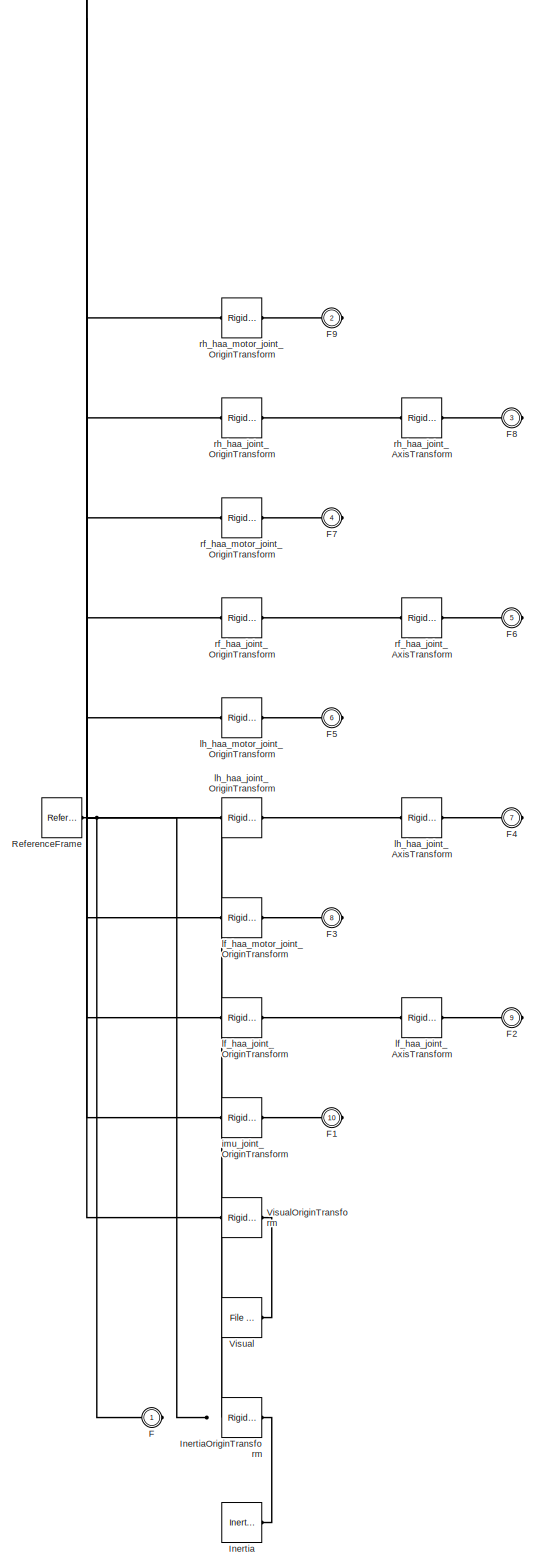
[diagram: trunk - part 1/1, most of the canvas]
BLOCK [SubSystem] trunk
  Ports = [0, 0, 0, 0, 0, 1, 9]
  RequestExecContextInheritance = off
BLOCK [PMIOPort] trunk/F
  Side = Left
BLOCK [PMIOPort] trunk/F1
  Port = 10
  Side = Right
BLOCK [PMIOPort] trunk/F2
  Port = 9
  Side = Right
BLOCK [PMIOPort] trunk/F3
  Port = 8
  Side = Right
BLOCK [PMIOPort] trunk/F4
  Port = 7
  Side = Right
BLOCK [PMIOPort] trunk/F5
  Port = 6
  Side = Right
BLOCK [PMIOPort] trunk/F6
  Port = 5
  Side = Right
BLOCK [PMIOPort] trunk/F7
  Port = 4
  Side = Right
BLOCK [PMIOPort] trunk/F8
  Port = 3
  Side = Right
BLOCK [PMIOPort] trunk/F9
  Port = 2
  Side = Right
BLOCK [Reference] trunk/Inertia  REF=sm_lib/Body Elements/Inertia
  Ports = [0, 0, 0, 0, 0, 0, 1]
  SourceBlock = sm_lib/Body Elements/Inertia
  SourceProductBaseCode = MS
  SourceType = Inertia
BLOCK [Reference] trunk/InertiaOriginTransform  REF=sm_lib/Frames and
Transforms/Rigid
Transform
  Ports = [0, 0, 0, 0, 0, 1, 1]
  SourceBlock = sm_lib/Frames and\nTransforms/Rigid\nTransform
  SourceProductBaseCode = MS
  SourceType = Rigid\nTransform
BLOCK [Reference] trunk/ReferenceFrame  REF=sm_lib/Frames and
Transforms/Reference
Frame
  Ports = [0, 0, 0, 0, 0, 0, 1]
  SourceBlock = sm_lib/Frames and\nTransforms/Reference\nFrame
  SourceProductBaseCode = MS
  SourceType = Reference\nFrame
BLOCK [Reference] trunk/Visual  REF=sm_lib/Body Elements/File Solid
  Ports = [0, 0, 0, 0, 0, 0, 1]
  SourceBlock = sm_lib/Body Elements/File Solid
  SourceProductBaseCode = MS
  SourceType = File Solid
BLOCK [Reference] trunk/VisualOriginTransform  REF=sm_lib/Frames and
Transforms/Rigid
Transform
  Ports = [0, 0, 0, 0, 0, 1, 1]
  SourceBlock = sm_lib/Frames and\nTransforms/Rigid\nTransform
  SourceProductBaseCode = MS
  SourceType = Rigid\nTransform
BLOCK [Reference] trunk/imu_joint_OriginTransform  REF=sm_lib/Frames and
Transforms/Rigid
Transform
  Ports = [0, 0, 0, 0, 0, 1, 1]
  SourceBlock = sm_lib/Frames and\nTransforms/Rigid\nTransform
  SourceProductBaseCode = MS
  SourceType = Rigid\nTransform
BLOCK [Reference] trunk/lf_haa_joint_AxisTransform  REF=sm_lib/Frames and
Transforms/Rigid
Transform
  Ports = [0, 0, 0, 0, 0, 1, 1]
  SourceBlock = sm_lib/Frames and\nTransforms/Rigid\nTransform
  SourceProductBaseCode = MS
  SourceType = Rigid\nTransform
BLOCK [Reference] trunk/lf_haa_joint_OriginTransform  REF=sm_lib/Frames and
Transforms/Rigid
Transform
  Ports = [0, 0, 0, 0, 0, 1, 1]
  SourceBlock = sm_lib/Frames and\nTransforms/Rigid\nTransform
  SourceProductBaseCode = MS
  SourceType = Rigid\nTransform
BLOCK [Reference] trunk/lf_haa_motor_joint_OriginTransform  REF=sm_lib/Frames and
Transforms/Rigid
Transform
  Ports = [0, 0, 0, 0, 0, 1, 1]
  SourceBlock = sm_lib/Frames and\nTransforms/Rigid\nTransform
  SourceProductBaseCode = MS
  SourceType = Rigid\nTransform
BLOCK [Reference] trunk/lh_haa_joint_AxisTransform  REF=sm_lib/Frames and
Transforms/Rigid
Transform
  Ports = [0, 0, 0, 0, 0, 1, 1]
  SourceBlock = sm_lib/Frames and\nTransforms/Rigid\nTransform
  SourceProductBaseCode = MS
  SourceType = Rigid\nTransform
BLOCK [Reference] trunk/lh_haa_joint_OriginTransform  REF=sm_lib/Frames and
Transforms/Rigid
Transform
  Ports = [0, 0, 0, 0, 0, 1, 1]
  SourceBlock = sm_lib/Frames and\nTransforms/Rigid\nTransform
  SourceProductBaseCode = MS
  SourceType = Rigid\nTransform
BLOCK [Reference] trunk/lh_haa_motor_joint_OriginTransform  REF=sm_lib/Frames and
Transforms/Rigid
Transform
  Ports = [0, 0, 0, 0, 0, 1, 1]
  SourceBlock = sm_lib/Frames and\nTransforms/Rigid\nTransform
  SourceProductBaseCode = MS
  SourceType = Rigid\nTransform
BLOCK [Reference] trunk/rf_haa_joint_AxisTransform  REF=sm_lib/Frames and
Transforms/Rigid
Transform
  Ports = [0, 0, 0, 0, 0, 1, 1]
  SourceBlock = sm_lib/Frames and\nTransforms/Rigid\nTransform
  SourceProductBaseCode = MS
  SourceType = Rigid\nTransform
BLOCK [Reference] trunk/rf_haa_joint_OriginTransform  REF=sm_lib/Frames and
Transforms/Rigid
Transform
  Ports = [0, 0, 0, 0, 0, 1, 1]
  SourceBlock = sm_lib/Frames and\nTransforms/Rigid\nTransform
  SourceProductBaseCode = MS
  SourceType = Rigid\nTransform
BLOCK [Reference] trunk/rf_haa_motor_joint_OriginTransform  REF=sm_lib/Frames and
Transforms/Rigid
Transform
  Ports = [0, 0, 0, 0, 0, 1, 1]
  SourceBlock = sm_lib/Frames and\nTransforms/Rigid\nTransform
  SourceProductBaseCode = MS
  SourceType = Rigid\nTransform
BLOCK [Reference] trunk/rh_haa_joint_AxisTransform  REF=sm_lib/Frames and
Transforms/Rigid
Transform
  Ports = [0, 0, 0, 0, 0, 1, 1]
  SourceBlock = sm_lib/Frames and\nTransforms/Rigid\nTransform
  SourceProductBaseCode = MS
  SourceType = Rigid\nTransform
BLOCK [Reference] trunk/rh_haa_joint_OriginTransform  REF=sm_lib/Frames and
Transforms/Rigid
Transform
  Ports = [0, 0, 0, 0, 0, 1, 1]
  SourceBlock = sm_lib/Frames and\nTransforms/Rigid\nTransform
  SourceProductBaseCode = MS
  SourceType = Rigid\nTransform
BLOCK [Reference] trunk/rh_haa_motor_joint_OriginTransform  REF=sm_lib/Frames and
Transforms/Rigid
Transform
  Ports = [0, 0, 0, 0, 0, 1, 1]
  SourceBlock = sm_lib/Frames and\nTransforms/Rigid\nTransform
  SourceProductBaseCode = MS
  SourceType = Rigid\nTransform
BLOCK [SubSystem] world
  Ports = [0, 0, 0, 0, 0, 1, 1]
  RequestExecContextInheritance = off
BLOCK [PMIOPort] world/F
  Side = Left
BLOCK [PMIOPort] world/F1
  Port = 2
  Side = Right
BLOCK [Reference] world/ReferenceFrame  REF=sm_lib/Frames and
Transforms/Reference
Frame
  Ports = [0, 0, 0, 0, 0, 0, 1]
  SourceBlock = sm_lib/Frames and\nTransforms/Reference\nFrame
  SourceProductBaseCode = MS
  SourceType = Reference\nFrame
BLOCK [Reference] world/floating_base_joint_OriginTransform  REF=sm_lib/Frames and
Transforms/Rigid
Transform
  Ports = [0, 0, 0, 0, 0, 1, 1]
  SourceBlock = sm_lib/Frames and\nTransforms/Rigid\nTransform
  SourceProductBaseCode = MS
  SourceType = Rigid\nTransform
PNET net1: MechanismConfiguration:RConn1 -- Solver Configuration:RConn1 -- World:RConn1 -- world:LConn1
PLINE base_link/F1:RConn1 -- base_link/floating_base_OriginTransform:RConn1
PNET net2: base_link/F:RConn1 -- base_link/ReferenceFrame:RConn1 -- base_link/floating_base_OriginTransform:LConn1
PLINE base_link:LConn1 -- floating_base_joint:RConn1
PLINE base_link:RConn1 -- floating_base:LConn1
PLINE floating_base:RConn1 -- trunk:LConn1
PLINE floating_base_joint:LConn1 -- world:RConn1
PLINE imu_joint:LConn1 -- trunk:RConn9
PLINE imu_joint:RConn1 -- imu_link:LConn1
PNET net3: imu_link/F:RConn1 -- imu_link/InertiaOriginTransform:LConn1 -- imu_link/ReferenceFrame:RConn1 -- imu_link/VisualOriginTransform:LConn1
PLINE imu_link/Inertia:RConn1 -- imu_link/InertiaOriginTransform:RConn1
PLINE imu_link/Visual:RConn1 -- imu_link/VisualOriginTransform:RConn1
PNET net4: lf_foot/F:RConn1 -- lf_foot/InertiaOriginTransform:LConn1 -- lf_foot/ReferenceFrame:RConn1 -- lf_foot/VisualOriginTransform:LConn1
PLINE lf_foot/Inertia:RConn1 -- lf_foot/InertiaOriginTransform:RConn1
PLINE lf_foot/Visual:RConn1 -- lf_foot/VisualOriginTransform:RConn1
PLINE lf_foot:LConn1 -- lf_foot_fixed:RConn1
PLINE lf_foot_fixed:LConn1 -- lf_lowerleg:RConn2
PLINE lf_haa_fixed:LConn1 -- lf_hip:RConn2
PLINE lf_haa_fixed:RConn1 -- lf_upperleg_shoulder:LConn1
PLINE lf_haa_joint:LConn1 -- trunk:RConn8
PLINE lf_haa_joint:RConn1 -- lf_hip:LConn1
PNET net5: lf_haa_motor/F:RConn1 -- lf_haa_motor/InertiaOriginTransform:LConn1 -- lf_haa_motor/ReferenceFrame:RConn1
PLINE lf_haa_motor/Inertia:RConn1 -- lf_haa_motor/InertiaOriginTransform:RConn1
PLINE lf_haa_motor:LConn1 -- lf_haa_motor_joint:RConn1
PLINE lf_haa_motor_joint:LConn1 -- trunk:RConn7
PLINE lf_hfe_joint:LConn1 -- lf_hip:RConn1
PLINE lf_hfe_joint:RConn1 -- lf_upperleg:LConn1
PNET net6: lf_hfe_motor/F:RConn1 -- lf_hfe_motor/InertiaOriginTransform:LConn1 -- lf_hfe_motor/ReferenceFrame:RConn1
PLINE lf_hfe_motor/Inertia:RConn1 -- lf_hfe_motor/InertiaOriginTransform:RConn1
PLINE lf_hfe_motor:LConn1 -- lf_hfe_motor_joint:RConn1
PLINE lf_hfe_motor_joint:LConn1 -- lf_upperleg:RConn2
PLINE lf_hip/F1:RConn1 -- lf_hip/lf_haa_fixed_OriginTransform:RConn1
PLINE lf_hip/F2:RConn1 -- lf_hip/lf_hfe_joint_AxisTransform:RConn1
PLINE lf_hip/F:RConn1 -- lf_hip/lf_haa_joint_AxisInvTransform:RConn1
PLINE lf_hip/Inertia:RConn1 -- lf_hip/InertiaOriginTransform:RConn1
PNET net7: lf_hip/InertiaOriginTransform:LConn1 -- lf_hip/ReferenceFrame:RConn1 -- lf_hip/VisualOriginTransform:LConn1 -- lf_hip/lf_haa_fixed_OriginTransform:LConn1 -- lf_hip/lf_haa_joint_AxisInvTransform:LConn1 -- lf_hip/lf_hfe_joint_OriginTransform:LConn1
PLINE lf_hip/Visual:RConn1 -- lf_hip/VisualOriginTransform:RConn1
PLINE lf_hip/lf_hfe_joint_AxisTransform:LConn1 -- lf_hip/lf_hfe_joint_OriginTransform:RConn1
PLINE lf_kfe_joint:LConn1 -- lf_upperleg:RConn1
PLINE lf_kfe_joint:RConn1 -- lf_lowerleg:LConn1
PNET net8: lf_kfe_motor/F:RConn1 -- lf_kfe_motor/InertiaOriginTransform:LConn1 -- lf_kfe_motor/ReferenceFrame:RConn1
PLINE lf_kfe_motor/Inertia:RConn1 -- lf_kfe_motor/InertiaOriginTransform:RConn1
PLINE lf_kfe_motor:LConn1 -- lf_kfe_motor_joint:RConn1
PLINE lf_kfe_motor_joint:LConn1 -- lf_lowerleg:RConn1
PLINE lf_lowerleg/F1:RConn1 -- lf_lowerleg/lf_foot_fixed_OriginTransform:RConn1
PLINE lf_lowerleg/F2:RConn1 -- lf_lowerleg/lf_kfe_motor_joint_OriginTransform:RConn1
PLINE lf_lowerleg/F:RConn1 -- lf_lowerleg/lf_kfe_joint_AxisInvTransform:RConn1
PLINE lf_lowerleg/Inertia:RConn1 -- lf_lowerleg/InertiaOriginTransform:RConn1
PNET net9: lf_lowerleg/InertiaOriginTransform:LConn1 -- lf_lowerleg/ReferenceFrame:RConn1 -- lf_lowerleg/VisualOriginTransform:LConn1 -- lf_lowerleg/lf_foot_fixed_OriginTransform:LConn1 -- lf_lowerleg/lf_kfe_joint_AxisInvTransform:LConn1 -- lf_lowerleg/lf_kfe_motor_joint_OriginTransform:LConn1
PLINE lf_lowerleg/Visual:RConn1 -- lf_lowerleg/VisualOriginTransform:RConn1
PLINE lf_upperleg/F1:RConn1 -- lf_upperleg/lf_hfe_motor_joint_OriginTransform:RConn1
PLINE lf_upperleg/F2:RConn1 -- lf_upperleg/lf_kfe_joint_AxisTransform:RConn1
PLINE lf_upperleg/F:RConn1 -- lf_upperleg/lf_hfe_joint_AxisInvTransform:RConn1
PLINE lf_upperleg/Inertia:RConn1 -- lf_upperleg/InertiaOriginTransform:RConn1
PNET net10: lf_upperleg/InertiaOriginTransform:LConn1 -- lf_upperleg/ReferenceFrame:RConn1 -- lf_upperleg/VisualOriginTransform:LConn1 -- lf_upperleg/lf_hfe_joint_AxisInvTransform:LConn1 -- lf_upperleg/lf_hfe_motor_joint_OriginTransform:LConn1 -- lf_upperleg/lf_kfe_joint_OriginTransform:LConn1
PLINE lf_upperleg/Visual:RConn1 -- lf_upperleg/VisualOriginTransform:RConn1
PLINE lf_upperleg/lf_kfe_joint_AxisTransform:LConn1 -- lf_upperleg/lf_kfe_joint_OriginTransform:RConn1
PLINE lf_upperleg_shoulder/F:RConn1 -- lf_upperleg_shoulder/ReferenceFrame:RConn1
PNET net11: lh_foot/F:RConn1 -- lh_foot/InertiaOriginTransform:LConn1 -- lh_foot/ReferenceFrame:RConn1 -- lh_foot/VisualOriginTransform:LConn1
PLINE lh_foot/Inertia:RConn1 -- lh_foot/InertiaOriginTransform:RConn1
PLINE lh_foot/Visual:RConn1 -- lh_foot/VisualOriginTransform:RConn1
PLINE lh_foot:LConn1 -- lh_foot_fixed:RConn1
PLINE lh_foot_fixed:LConn1 -- lh_lowerleg:RConn2
PLINE lh_haa_fixed:LConn1 -- lh_hip:RConn2
PLINE lh_haa_fixed:RConn1 -- lh_upperleg_shoulder:LConn1
PLINE lh_haa_joint:LConn1 -- trunk:RConn6
PLINE lh_haa_joint:RConn1 -- lh_hip:LConn1
PNET net12: lh_haa_motor/F:RConn1 -- lh_haa_motor/InertiaOriginTransform:LConn1 -- lh_haa_motor/ReferenceFrame:RConn1
PLINE lh_haa_motor/Inertia:RConn1 -- lh_haa_motor/InertiaOriginTransform:RConn1
PLINE lh_haa_motor:LConn1 -- lh_haa_motor_joint:RConn1
PLINE lh_haa_motor_joint:LConn1 -- trunk:RConn5
PLINE lh_hfe_joint:LConn1 -- lh_hip:RConn1
PLINE lh_hfe_joint:RConn1 -- lh_upperleg:LConn1
PNET net13: lh_hfe_motor/F:RConn1 -- lh_hfe_motor/InertiaOriginTransform:LConn1 -- lh_hfe_motor/ReferenceFrame:RConn1
PLINE lh_hfe_motor/Inertia:RConn1 -- lh_hfe_motor/InertiaOriginTransform:RConn1
PLINE lh_hfe_motor:LConn1 -- lh_hfe_motor_joint:RConn1
PLINE lh_hfe_motor_joint:LConn1 -- lh_upperleg:RConn2
PLINE lh_hip/F1:RConn1 -- lh_hip/lh_haa_fixed_OriginTransform:RConn1
PLINE lh_hip/F2:RConn1 -- lh_hip/lh_hfe_joint_AxisTransform:RConn1
PLINE lh_hip/F:RConn1 -- lh_hip/lh_haa_joint_AxisInvTransform:RConn1
PLINE lh_hip/Inertia:RConn1 -- lh_hip/InertiaOriginTransform:RConn1
PNET net14: lh_hip/InertiaOriginTransform:LConn1 -- lh_hip/ReferenceFrame:RConn1 -- lh_hip/VisualOriginTransform:LConn1 -- lh_hip/lh_haa_fixed_OriginTransform:LConn1 -- lh_hip/lh_haa_joint_AxisInvTransform:LConn1 -- lh_hip/lh_hfe_joint_OriginTransform:LConn1
PLINE lh_hip/Visual:RConn1 -- lh_hip/VisualOriginTransform:RConn1
PLINE lh_hip/lh_hfe_joint_AxisTransform:LConn1 -- lh_hip/lh_hfe_joint_OriginTransform:RConn1
PLINE lh_kfe_joint:LConn1 -- lh_upperleg:RConn1
PLINE lh_kfe_joint:RConn1 -- lh_lowerleg:LConn1
PNET net15: lh_kfe_motor/F:RConn1 -- lh_kfe_motor/InertiaOriginTransform:LConn1 -- lh_kfe_motor/ReferenceFrame:RConn1
PLINE lh_kfe_motor/Inertia:RConn1 -- lh_kfe_motor/InertiaOriginTransform:RConn1
PLINE lh_kfe_motor:LConn1 -- lh_kfe_motor_joint:RConn1
PLINE lh_kfe_motor_joint:LConn1 -- lh_lowerleg:RConn1
PLINE lh_lowerleg/F1:RConn1 -- lh_lowerleg/lh_foot_fixed_OriginTransform:RConn1
PLINE lh_lowerleg/F2:RConn1 -- lh_lowerleg/lh_kfe_motor_joint_OriginTransform:RConn1
PLINE lh_lowerleg/F:RConn1 -- lh_lowerleg/lh_kfe_joint_AxisInvTransform:RConn1
PLINE lh_lowerleg/Inertia:RConn1 -- lh_lowerleg/InertiaOriginTransform:RConn1
PNET net16: lh_lowerleg/InertiaOriginTransform:LConn1 -- lh_lowerleg/ReferenceFrame:RConn1 -- lh_lowerleg/VisualOriginTransform:LConn1 -- lh_lowerleg/lh_foot_fixed_OriginTransform:LConn1 -- lh_lowerleg/lh_kfe_joint_AxisInvTransform:LConn1 -- lh_lowerleg/lh_kfe_motor_joint_OriginTransform:LConn1
PLINE lh_lowerleg/Visual:RConn1 -- lh_lowerleg/VisualOriginTransform:RConn1
PLINE lh_upperleg/F1:RConn1 -- lh_upperleg/lh_hfe_motor_joint_OriginTransform:RConn1
PLINE lh_upperleg/F2:RConn1 -- lh_upperleg/lh_kfe_joint_AxisTransform:RConn1
PLINE lh_upperleg/F:RConn1 -- lh_upperleg/lh_hfe_joint_AxisInvTransform:RConn1
PLINE lh_upperleg/Inertia:RConn1 -- lh_upperleg/InertiaOriginTransform:RConn1
PNET net17: lh_upperleg/InertiaOriginTransform:LConn1 -- lh_upperleg/ReferenceFrame:RConn1 -- lh_upperleg/VisualOriginTransform:LConn1 -- lh_upperleg/lh_hfe_joint_AxisInvTransform:LConn1 -- lh_upperleg/lh_hfe_motor_joint_OriginTransform:LConn1 -- lh_upperleg/lh_kfe_joint_OriginTransform:LConn1
PLINE lh_upperleg/Visual:RConn1 -- lh_upperleg/VisualOriginTransform:RConn1
PLINE lh_upperleg/lh_kfe_joint_AxisTransform:LConn1 -- lh_upperleg/lh_kfe_joint_OriginTransform:RConn1
PLINE lh_upperleg_shoulder/F:RConn1 -- lh_upperleg_shoulder/ReferenceFrame:RConn1
PNET net18: rf_foot/F:RConn1 -- rf_foot/InertiaOriginTransform:LConn1 -- rf_foot/ReferenceFrame:RConn1 -- rf_foot/VisualOriginTransform:LConn1
PLINE rf_foot/Inertia:RConn1 -- rf_foot/InertiaOriginTransform:RConn1
PLINE rf_foot/Visual:RConn1 -- rf_foot/VisualOriginTransform:RConn1
PLINE rf_foot:LConn1 -- rf_foot_fixed:RConn1
PLINE rf_foot_fixed:LConn1 -- rf_lowerleg:RConn2
PLINE rf_haa_fixed:LConn1 -- rf_hip:RConn2
PLINE rf_haa_fixed:RConn1 -- rf_upperleg_shoulder:LConn1
PLINE rf_haa_joint:LConn1 -- trunk:RConn4
PLINE rf_haa_joint:RConn1 -- rf_hip:LConn1
PNET net19: rf_haa_motor/F:RConn1 -- rf_haa_motor/InertiaOriginTransform:LConn1 -- rf_haa_motor/ReferenceFrame:RConn1
PLINE rf_haa_motor/Inertia:RConn1 -- rf_haa_motor/InertiaOriginTransform:RConn1
PLINE rf_haa_motor:LConn1 -- rf_haa_motor_joint:RConn1
PLINE rf_haa_motor_joint:LConn1 -- trunk:RConn3
PLINE rf_hfe_joint:LConn1 -- rf_hip:RConn1
PLINE rf_hfe_joint:RConn1 -- rf_upperleg:LConn1
PNET net20: rf_hfe_motor/F:RConn1 -- rf_hfe_motor/InertiaOriginTransform:LConn1 -- rf_hfe_motor/ReferenceFrame:RConn1
PLINE rf_hfe_motor/Inertia:RConn1 -- rf_hfe_motor/InertiaOriginTransform:RConn1
PLINE rf_hfe_motor:LConn1 -- rf_hfe_motor_joint:RConn1
PLINE rf_hfe_motor_joint:LConn1 -- rf_upperleg:RConn2
PLINE rf_hip/F1:RConn1 -- rf_hip/rf_haa_fixed_OriginTransform:RConn1
PLINE rf_hip/F2:RConn1 -- rf_hip/rf_hfe_joint_AxisTransform:RConn1
PLINE rf_hip/F:RConn1 -- rf_hip/rf_haa_joint_AxisInvTransform:RConn1
PLINE rf_hip/Inertia:RConn1 -- rf_hip/InertiaOriginTransform:RConn1
PNET net21: rf_hip/InertiaOriginTransform:LConn1 -- rf_hip/ReferenceFrame:RConn1 -- rf_hip/VisualOriginTransform:LConn1 -- rf_hip/rf_haa_fixed_OriginTransform:LConn1 -- rf_hip/rf_haa_joint_AxisInvTransform:LConn1 -- rf_hip/rf_hfe_joint_OriginTransform:LConn1
PLINE rf_hip/Visual:RConn1 -- rf_hip/VisualOriginTransform:RConn1
PLINE rf_hip/rf_hfe_joint_AxisTransform:LConn1 -- rf_hip/rf_hfe_joint_OriginTransform:RConn1
PLINE rf_kfe_joint:LConn1 -- rf_upperleg:RConn1
PLINE rf_kfe_joint:RConn1 -- rf_lowerleg:LConn1
PNET net22: rf_kfe_motor/F:RConn1 -- rf_kfe_motor/InertiaOriginTransform:LConn1 -- rf_kfe_motor/ReferenceFrame:RConn1
PLINE rf_kfe_motor/Inertia:RConn1 -- rf_kfe_motor/InertiaOriginTransform:RConn1
PLINE rf_kfe_motor:LConn1 -- rf_kfe_motor_joint:RConn1
PLINE rf_kfe_motor_joint:LConn1 -- rf_lowerleg:RConn1
PLINE rf_lowerleg/F1:RConn1 -- rf_lowerleg/rf_foot_fixed_OriginTransform:RConn1
PLINE rf_lowerleg/F2:RConn1 -- rf_lowerleg/rf_kfe_motor_joint_OriginTransform:RConn1
PLINE rf_lowerleg/F:RConn1 -- rf_lowerleg/rf_kfe_joint_AxisInvTransform:RConn1
PLINE rf_lowerleg/Inertia:RConn1 -- rf_lowerleg/InertiaOriginTransform:RConn1
PNET net23: rf_lowerleg/InertiaOriginTransform:LConn1 -- rf_lowerleg/ReferenceFrame:RConn1 -- rf_lowerleg/VisualOriginTransform:LConn1 -- rf_lowerleg/rf_foot_fixed_OriginTransform:LConn1 -- rf_lowerleg/rf_kfe_joint_AxisInvTransform:LConn1 -- rf_lowerleg/rf_kfe_motor_joint_OriginTransform:LConn1
PLINE rf_lowerleg/Visual:RConn1 -- rf_lowerleg/VisualOriginTransform:RConn1
PLINE rf_upperleg/F1:RConn1 -- rf_upperleg/rf_hfe_motor_joint_OriginTransform:RConn1
PLINE rf_upperleg/F2:RConn1 -- rf_upperleg/rf_kfe_joint_AxisTransform:RConn1
PLINE rf_upperleg/F:RConn1 -- rf_upperleg/rf_hfe_joint_AxisInvTransform:RConn1
PLINE rf_upperleg/Inertia:RConn1 -- rf_upperleg/InertiaOriginTransform:RConn1
PNET net24: rf_upperleg/InertiaOriginTransform:LConn1 -- rf_upperleg/ReferenceFrame:RConn1 -- rf_upperleg/VisualOriginTransform:LConn1 -- rf_upperleg/rf_hfe_joint_AxisInvTransform:LConn1 -- rf_upperleg/rf_hfe_motor_joint_OriginTransform:LConn1 -- rf_upperleg/rf_kfe_joint_OriginTransform:LConn1
PLINE rf_upperleg/Visual:RConn1 -- rf_upperleg/VisualOriginTransform:RConn1
PLINE rf_upperleg/rf_kfe_joint_AxisTransform:LConn1 -- rf_upperleg/rf_kfe_joint_OriginTransform:RConn1
PLINE rf_upperleg_shoulder/F:RConn1 -- rf_upperleg_shoulder/ReferenceFrame:RConn1
PNET net25: rh_foot/F:RConn1 -- rh_foot/InertiaOriginTransform:LConn1 -- rh_foot/ReferenceFrame:RConn1 -- rh_foot/VisualOriginTransform:LConn1
PLINE rh_foot/Inertia:RConn1 -- rh_foot/InertiaOriginTransform:RConn1
PLINE rh_foot/Visual:RConn1 -- rh_foot/VisualOriginTransform:RConn1
PLINE rh_foot:LConn1 -- rh_foot_fixed:RConn1
PLINE rh_foot_fixed:LConn1 -- rh_lowerleg:RConn2
PLINE rh_haa_fixed:LConn1 -- rh_hip:RConn2
PLINE rh_haa_fixed:RConn1 -- rh_upperleg_shoulder:LConn1
PLINE rh_haa_joint:LConn1 -- trunk:RConn2
PLINE rh_haa_joint:RConn1 -- rh_hip:LConn1
PNET net26: rh_haa_motor/F:RConn1 -- rh_haa_motor/InertiaOriginTransform:LConn1 -- rh_haa_motor/ReferenceFrame:RConn1
PLINE rh_haa_motor/Inertia:RConn1 -- rh_haa_motor/InertiaOriginTransform:RConn1
PLINE rh_haa_motor:LConn1 -- rh_haa_motor_joint:RConn1
PLINE rh_haa_motor_joint:LConn1 -- trunk:RConn1
PLINE rh_hfe_joint:LConn1 -- rh_hip:RConn1
PLINE rh_hfe_joint:RConn1 -- rh_upperleg:LConn1
PNET net27: rh_hfe_motor/F:RConn1 -- rh_hfe_motor/InertiaOriginTransform:LConn1 -- rh_hfe_motor/ReferenceFrame:RConn1
PLINE rh_hfe_motor/Inertia:RConn1 -- rh_hfe_motor/InertiaOriginTransform:RConn1
PLINE rh_hfe_motor:LConn1 -- rh_hfe_motor_joint:RConn1
PLINE rh_hfe_motor_joint:LConn1 -- rh_upperleg:RConn2
PLINE rh_hip/F1:RConn1 -- rh_hip/rh_haa_fixed_OriginTransform:RConn1
PLINE rh_hip/F2:RConn1 -- rh_hip/rh_hfe_joint_AxisTransform:RConn1
PLINE rh_hip/F:RConn1 -- rh_hip/rh_haa_joint_AxisInvTransform:RConn1
PLINE rh_hip/Inertia:RConn1 -- rh_hip/InertiaOriginTransform:RConn1
PNET net28: rh_hip/InertiaOriginTransform:LConn1 -- rh_hip/ReferenceFrame:RConn1 -- rh_hip/VisualOriginTransform:LConn1 -- rh_hip/rh_haa_fixed_OriginTransform:LConn1 -- rh_hip/rh_haa_joint_AxisInvTransform:LConn1 -- rh_hip/rh_hfe_joint_OriginTransform:LConn1
PLINE rh_hip/Visual:RConn1 -- rh_hip/VisualOriginTransform:RConn1
PLINE rh_hip/rh_hfe_joint_AxisTransform:LConn1 -- rh_hip/rh_hfe_joint_OriginTransform:RConn1
PLINE rh_kfe_joint:LConn1 -- rh_upperleg:RConn1
PLINE rh_kfe_joint:RConn1 -- rh_lowerleg:LConn1
PNET net29: rh_kfe_motor/F:RConn1 -- rh_kfe_motor/InertiaOriginTransform:LConn1 -- rh_kfe_motor/ReferenceFrame:RConn1
PLINE rh_kfe_motor/Inertia:RConn1 -- rh_kfe_motor/InertiaOriginTransform:RConn1
PLINE rh_kfe_motor:LConn1 -- rh_kfe_motor_joint:RConn1
PLINE rh_kfe_motor_joint:LConn1 -- rh_lowerleg:RConn1
PLINE rh_lowerleg/F1:RConn1 -- rh_lowerleg/rh_foot_fixed_OriginTransform:RConn1
PLINE rh_lowerleg/F2:RConn1 -- rh_lowerleg/rh_kfe_motor_joint_OriginTransform:RConn1
PLINE rh_lowerleg/F:RConn1 -- rh_lowerleg/rh_kfe_joint_AxisInvTransform:RConn1
PLINE rh_lowerleg/Inertia:RConn1 -- rh_lowerleg/InertiaOriginTransform:RConn1
PNET net30: rh_lowerleg/InertiaOriginTransform:LConn1 -- rh_lowerleg/ReferenceFrame:RConn1 -- rh_lowerleg/VisualOriginTransform:LConn1 -- rh_lowerleg/rh_foot_fixed_OriginTransform:LConn1 -- rh_lowerleg/rh_kfe_joint_AxisInvTransform:LConn1 -- rh_lowerleg/rh_kfe_motor_joint_OriginTransform:LConn1
PLINE rh_lowerleg/Visual:RConn1 -- rh_lowerleg/VisualOriginTransform:RConn1
PLINE rh_upperleg/F1:RConn1 -- rh_upperleg/rh_hfe_motor_joint_OriginTransform:RConn1
PLINE rh_upperleg/F2:RConn1 -- rh_upperleg/rh_kfe_joint_AxisTransform:RConn1
PLINE rh_upperleg/F:RConn1 -- rh_upperleg/rh_hfe_joint_AxisInvTransform:RConn1
PLINE rh_upperleg/Inertia:RConn1 -- rh_upperleg/InertiaOriginTransform:RConn1
PNET net31: rh_upperleg/InertiaOriginTransform:LConn1 -- rh_upperleg/ReferenceFrame:RConn1 -- rh_upperleg/VisualOriginTransform:LConn1 -- rh_upperleg/rh_hfe_joint_AxisInvTransform:LConn1 -- rh_upperleg/rh_hfe_motor_joint_OriginTransform:LConn1 -- rh_upperleg/rh_kfe_joint_OriginTransform:LConn1
PLINE rh_upperleg/Visual:RConn1 -- rh_upperleg/VisualOriginTransform:RConn1
PLINE rh_upperleg/rh_kfe_joint_AxisTransform:LConn1 -- rh_upperleg/rh_kfe_joint_OriginTransform:RConn1
PLINE rh_upperleg_shoulder/F:RConn1 -- rh_upperleg_shoulder/ReferenceFrame:RConn1
PLINE trunk/F1:RConn1 -- trunk/imu_joint_OriginTransform:RConn1
PLINE trunk/F2:RConn1 -- trunk/lf_haa_joint_AxisTransform:RConn1
PLINE trunk/F3:RConn1 -- trunk/lf_haa_motor_joint_OriginTransform:RConn1
PLINE trunk/F4:RConn1 -- trunk/lh_haa_joint_AxisTransform:RConn1
PLINE trunk/F5:RConn1 -- trunk/lh_haa_motor_joint_OriginTransform:RConn1
PLINE trunk/F6:RConn1 -- trunk/rf_haa_joint_AxisTransform:RConn1
PLINE trunk/F7:RConn1 -- trunk/rf_haa_motor_joint_OriginTransform:RConn1
PLINE trunk/F8:RConn1 -- trunk/rh_haa_joint_AxisTransform:RConn1
PLINE trunk/F9:RConn1 -- trunk/rh_haa_motor_joint_OriginTransform:RConn1
PNET net32: trunk/F:RConn1 -- trunk/InertiaOriginTransform:LConn1 -- trunk/ReferenceFrame:RConn1 -- trunk/VisualOriginTransform:LConn1 -- trunk/imu_joint_OriginTransform:LConn1 -- trunk/lf_haa_joint_OriginTransform:LConn1 -- trunk/lf_haa_motor_joint_OriginTransform:LConn1 -- trunk/lh_haa_joint_OriginTransform:LConn1 -- trunk/lh_haa_motor_joint_OriginTransform:LConn1 -- trunk/rf_haa_joint_OriginTransform:LConn1 -- trunk/rf_haa_motor_joint_OriginTransform:LConn1 -- trunk/rh_haa_joint_OriginTransform:LConn1 -- trunk/rh_haa_motor_joint_OriginTransform:LConn1
PLINE trunk/Inertia:RConn1 -- trunk/InertiaOriginTransform:RConn1
PLINE trunk/Visual:RConn1 -- trunk/VisualOriginTransform:RConn1
PLINE trunk/lf_haa_joint_AxisTransform:LConn1 -- trunk/lf_haa_joint_OriginTransform:RConn1
PLINE trunk/lh_haa_joint_AxisTransform:LConn1 -- trunk/lh_haa_joint_OriginTransform:RConn1
PLINE trunk/rf_haa_joint_AxisTransform:LConn1 -- trunk/rf_haa_joint_OriginTransform:RConn1
PLINE trunk/rh_haa_joint_AxisTransform:LConn1 -- trunk/rh_haa_joint_OriginTransform:RConn1
PLINE world/F1:RConn1 -- world/floating_base_joint_OriginTransform:RConn1
PNET net33: world/F:RConn1 -- world/ReferenceFrame:RConn1 -- world/floating_base_joint_OriginTransform:LConn1
note: PNET lines group multi-terminal physical nets as a canonical sorted terminal list (undirected conserving connections); 2-terminal nets keep the pairwise PLINE form
